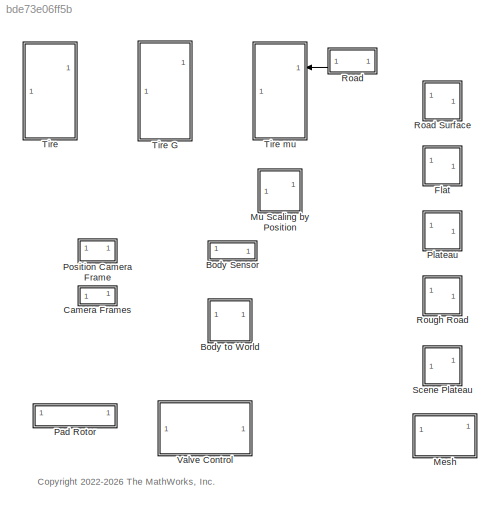
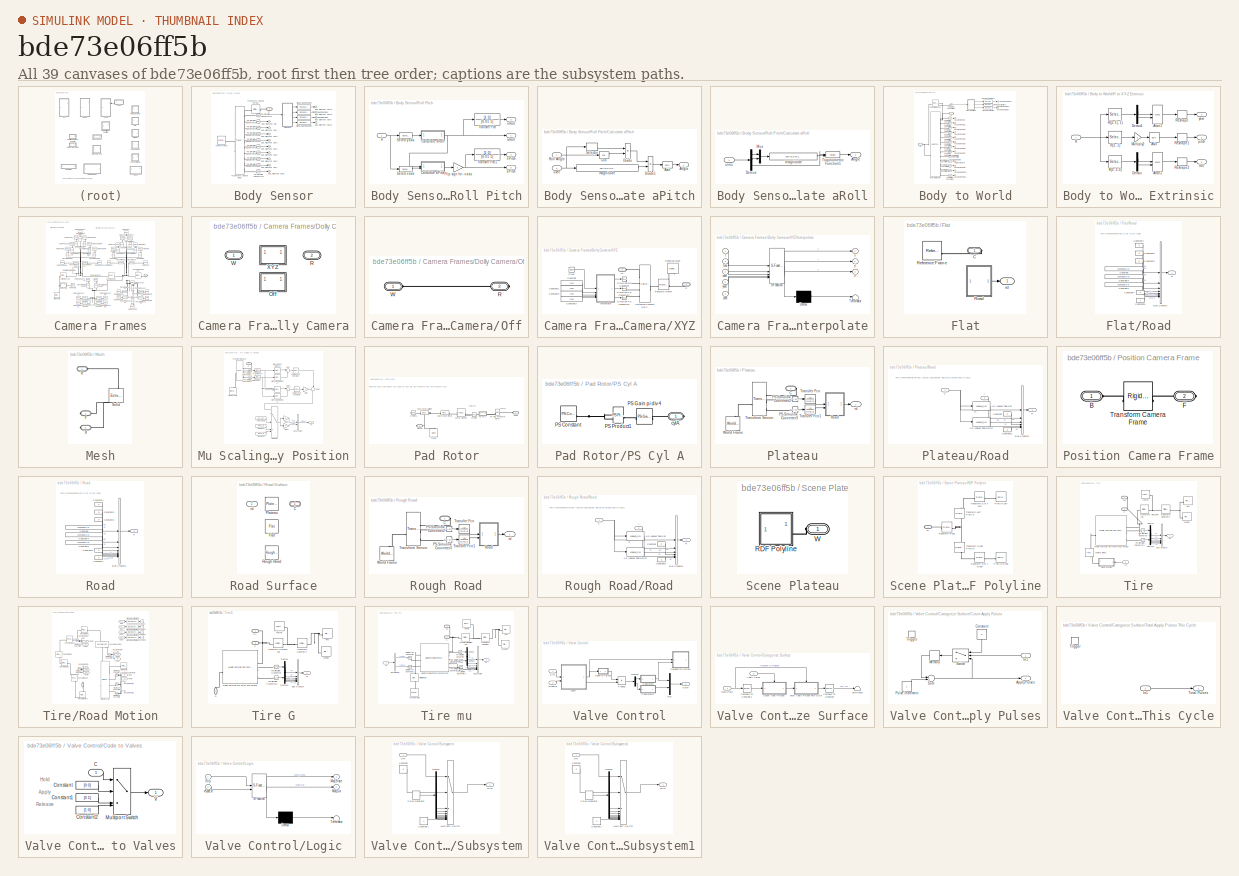
[diagram: thumbnail index - all 39 canvases of the model, root first then tree order]
MODEL slx_bde73e06ff5b
KIND library
CONFIG SolverName = VariableStepAuto
BLOCK [SubSystem] Body Sensor
BLOCK [PMIOPort] Body Sensor/B
  NameLocation = top
  Side = Left
BLOCK [Outport] Body Sensor/Bus Element Out
  VectorParamsAs1DForOutWhenUnconnected = off
BLOCK [Outport] Body Sensor/Bus Element Out1
  VectorParamsAs1DForOutWhenUnconnected = off
BLOCK [Outport] Body Sensor/Bus Element Out10
  VectorParamsAs1DForOutWhenUnconnected = off
BLOCK [Outport] Body Sensor/Bus Element Out12
  VectorParamsAs1DForOutWhenUnconnected = off
BLOCK [Outport] Body Sensor/Bus Element Out13
  VectorParamsAs1DForOutWhenUnconnected = off
BLOCK [Outport] Body Sensor/Bus Element Out2
  VectorParamsAs1DForOutWhenUnconnected = off
BLOCK [Outport] Body Sensor/Bus Element Out3
  VectorParamsAs1DForOutWhenUnconnected = off
BLOCK [Outport] Body Sensor/Bus Element Out4
  VectorParamsAs1DForOutWhenUnconnected = off
BLOCK [Outport] Body Sensor/Bus Element Out5
  VectorParamsAs1DForOutWhenUnconnected = off
BLOCK [Outport] Body Sensor/Bus Element Out6
  VectorParamsAs1DForOutWhenUnconnected = off
BLOCK [Outport] Body Sensor/Bus Element Out7
  VectorParamsAs1DForOutWhenUnconnected = off
BLOCK [Outport] Body Sensor/Bus Element Out8
  VectorParamsAs1DForOutWhenUnconnected = off
BLOCK [Outport] Body Sensor/Bus Element Out9
  VectorParamsAs1DForOutWhenUnconnected = off
BLOCK [Reference] Body Sensor/PS-Simulink Converter1  REF=nesl_utility/PS-Simulink
Converter
  SourceBlock = nesl_utility/PS-Simulink\nConverter
  SourceType = PS-Simulink\nConverter
BLOCK [Reference] Body Sensor/PS-Simulink Converter11  REF=nesl_utility/PS-Simulink
Converter
  SourceBlock = nesl_utility/PS-Simulink\nConverter
  SourceType = PS-Simulink\nConverter
BLOCK [Reference] Body Sensor/PS-Simulink Converter2  REF=nesl_utility/PS-Simulink
Converter
  SourceBlock = nesl_utility/PS-Simulink\nConverter
  SourceType = PS-Simulink\nConverter
BLOCK [Reference] Body Sensor/PS-Simulink Converter3  REF=nesl_utility/PS-Simulink
Converter
  SourceBlock = nesl_utility/PS-Simulink\nConverter
  SourceType = PS-Simulink\nConverter
BLOCK [Reference] Body Sensor/PS-Simulink Converter4  REF=nesl_utility/PS-Simulink
Converter
  SourceBlock = nesl_utility/PS-Simulink\nConverter
  SourceType = PS-Simulink\nConverter
BLOCK [Reference] Body Sensor/PS-Simulink Converter5  REF=nesl_utility/PS-Simulink
Converter
  SourceBlock = nesl_utility/PS-Simulink\nConverter
  SourceType = PS-Simulink\nConverter
BLOCK [Reference] Body Sensor/PS-Simulink Converter6  REF=nesl_utility/PS-Simulink
Converter
  SourceBlock = nesl_utility/PS-Simulink\nConverter
  SourceType = PS-Simulink\nConverter
BLOCK [Reference] Body Sensor/PS-Simulink Converter7  REF=nesl_utility/PS-Simulink
Converter
  SourceBlock = nesl_utility/PS-Simulink\nConverter
  SourceType = PS-Simulink\nConverter
BLOCK [Reference] Body Sensor/PS-Simulink Converter8  REF=nesl_utility/PS-Simulink
Converter
  SourceBlock = nesl_utility/PS-Simulink\nConverter
  SourceType = PS-Simulink\nConverter
BLOCK [Reference] Body Sensor/PS-Simulink Converter9  REF=nesl_utility/PS-Simulink
Converter
  SourceBlock = nesl_utility/PS-Simulink\nConverter
  SourceType = PS-Simulink\nConverter
BLOCK [SubSystem] Body Sensor/Roll Pitch
BLOCK [SubSystem] Body Sensor/Roll Pitch/Calculate aPitch
BLOCK [Outport] Body Sensor/Roll Pitch/Calculate aPitch/Angle
  VectorParamsAs1DForOutWhenUnconnected = off
BLOCK [Trigonometry] Body Sensor/Roll Pitch/Calculate aPitch/Asin
  Operator = asin
BLOCK [Trigonometry] Body Sensor/Roll Pitch/Calculate aPitch/Cos
  Operator = cos
BLOCK [Product] Body Sensor/Roll Pitch/Calculate aPitch/Divide
  Inputs = */
BLOCK [Product] Body Sensor/Roll Pitch/Calculate aPitch/Divide1
  Inputs = */
BLOCK [Inport] Body Sensor/Roll Pitch/Calculate aPitch/Roll Angle
BLOCK [Selector] Body Sensor/Roll Pitch/Calculate aPitch/Selector
  IndexOptions = Index vector (dialog)
  Indices = [3]
  InputPortWidth = 3
  NameLocation = top
  OutputSizes = 1
BLOCK [Fcn] Body Sensor/Roll Pitch/Calculate aPitch/magnitude
  Expr = sqrt(u(1)*u(1)+u(2)*u(2)+u(3)*u(3))
BLOCK [Inport] Body Sensor/Roll Pitch/Calculate aPitch/uvec
  Port = 2
BLOCK [SubSystem] Body Sensor/Roll Pitch/Calculate aRoll
BLOCK [Outport] Body Sensor/Roll Pitch/Calculate aRoll/Angle
  VectorParamsAs1DForOutWhenUnconnected = off
BLOCK [Demux] Body Sensor/Roll Pitch/Calculate aRoll/Demux
  Outputs = 3
BLOCK [Mux] Body Sensor/Roll Pitch/Calculate aRoll/Mux
  DisplayOption = bar
  Inputs = 2
BLOCK [Trigonometry] Body Sensor/Roll Pitch/Calculate aRoll/Trigonometric Function1
  Operator = atan2
BLOCK [Fcn] Body Sensor/Roll Pitch/Calculate aRoll/magnitude
  Expr = sqrt(u(1)*u(1)+u(2)*u(2))
BLOCK [Inport] Body Sensor/Roll Pitch/Calculate aRoll/uvec
BLOCK [Gain] Body Sensor/Roll Pitch/Flip sign for -x axis 
  Gain = -1
BLOCK [Inport] Body Sensor/Roll Pitch/R
BLOCK [Selector] Body Sensor/Roll Pitch/Select x axis
  IndexOptions = Index vector (dialog),Index vector (dialog)
  Indices = [1 2 3],1
  InputPortWidth = 2
  NumberOfDimensions = 2
  OutputSizes = 1,1
BLOCK [Selector] Body Sensor/Roll Pitch/Select y axis
  IndexOptions = Index vector (dialog),Index vector (dialog)
  Indices = [1 2 3],2
  InputPortWidth = 2
  NumberOfDimensions = 2
  OutputSizes = 1,1
BLOCK [TransferFcn] Body Sensor/Roll Pitch/Transfer Fcn
  Denominator = [0.01 1]
  NameLocation = top
  Numerator = [1 0]
BLOCK [TransferFcn] Body Sensor/Roll Pitch/Transfer Fcn1
  Denominator = [0.01 1]
  NameLocation = top
  Numerator = [1 0]
BLOCK [Outport] Body Sensor/Roll Pitch/aPitch
  Port = 2
  VectorParamsAs1DForOutWhenUnconnected = off
BLOCK [Outport] Body Sensor/Roll Pitch/aRoll
  VectorParamsAs1DForOutWhenUnconnected = off
BLOCK [Outport] Body Sensor/Roll Pitch/nPitch
  Port = 4
  VectorParamsAs1DForOutWhenUnconnected = off
BLOCK [Outport] Body Sensor/Roll Pitch/nRoll
  Port = 3
  VectorParamsAs1DForOutWhenUnconnected = off
BLOCK [SignalSpecification] Body Sensor/Signal Specification
  Unit = rad
BLOCK [SignalSpecification] Body Sensor/Signal Specification1
  Unit = rad
BLOCK [SignalSpecification] Body Sensor/Signal Specification3
  Unit = rad/s
BLOCK [SignalSpecification] Body Sensor/Signal Specification4
  Unit = rad/s
BLOCK [Reference] Body Sensor/Transform Sensor Body  REF=sm_lib/Frames and
Transforms/Transform
Sensor
  AttributesFormatString = %<MeasurementFrame>
  SourceBlock = sm_lib/Frames and\nTransforms/Transform\nSensor
  SourceType = Transform\nSensor
BLOCK [Reference] Body Sensor/Transform Sensor Offset  REF=sm_lib/Frames and
Transforms/Rigid
Transform
  NameLocation = top
  SourceBlock = sm_lib/Frames and\nTransforms/Rigid\nTransform
  SourceType = Rigid\nTransform
BLOCK [Reference] Body Sensor/World Frame  REF=sm_lib/Frames and
Transforms/World Frame
  SourceBlock = sm_lib/Frames and\nTransforms/World Frame
  SourceType = World Frame
BLOCK [SubSystem] Body to World
BLOCK [PMIOPort] Body to World/B
  Port = 2
  Side = Left
BLOCK [Reference] Body to World/Body World Joint  REF=sm_lib/Joints/6-DOF Joint
  SourceBlock = sm_lib/Joints/6-DOF Joint
  SourceType = 6-DOF Joint
BLOCK [Outport] Body to World/Bus Element Out
  VectorParamsAs1DForOutWhenUnconnected = off
BLOCK [Outport] Body to World/Bus Element Out1
  VectorParamsAs1DForOutWhenUnconnected = off
BLOCK [Outport] Body to World/Bus Element Out10
  VectorParamsAs1DForOutWhenUnconnected = off
BLOCK [Outport] Body to World/Bus Element Out11
  VectorParamsAs1DForOutWhenUnconnected = off
BLOCK [Outport] Body to World/Bus Element Out12
  VectorParamsAs1DForOutWhenUnconnected = off
BLOCK [Outport] Body to World/Bus Element Out13
  VectorParamsAs1DForOutWhenUnconnected = off
BLOCK [Outport] Body to World/Bus Element Out14
  VectorParamsAs1DForOutWhenUnconnected = off
BLOCK [Outport] Body to World/Bus Element Out2
  VectorParamsAs1DForOutWhenUnconnected = off
BLOCK [Outport] Body to World/Bus Element Out3
  VectorParamsAs1DForOutWhenUnconnected = off
BLOCK [Outport] Body to World/Bus Element Out4
  VectorParamsAs1DForOutWhenUnconnected = off
BLOCK [Outport] Body to World/Bus Element Out5
  VectorParamsAs1DForOutWhenUnconnected = off
BLOCK [Outport] Body to World/Bus Element Out6
  VectorParamsAs1DForOutWhenUnconnected = off
BLOCK [Outport] Body to World/Bus Element Out7
  VectorParamsAs1DForOutWhenUnconnected = off
BLOCK [Outport] Body to World/Bus Element Out8
  VectorParamsAs1DForOutWhenUnconnected = off
BLOCK [Outport] Body to World/Bus Element Out9
  VectorParamsAs1DForOutWhenUnconnected = off
BLOCK [PMIOPort] Body to World/F
  Side = Right
BLOCK [Outport] Body to World/Out Bus Element
  VectorParamsAs1DForOutWhenUnconnected = off
BLOCK [Reference] Body to World/PS-Simulink Converter  REF=nesl_utility/PS-Simulink
Converter
  SourceBlock = nesl_utility/PS-Simulink\nConverter
  SourceType = PS-Simulink\nConverter
BLOCK [Reference] Body to World/PS-Simulink Converter1  REF=nesl_utility/PS-Simulink
Converter
  SourceBlock = nesl_utility/PS-Simulink\nConverter
  SourceType = PS-Simulink\nConverter
BLOCK [Reference] Body to World/PS-Simulink Converter10  REF=nesl_utility/PS-Simulink
Converter
  SourceBlock = nesl_utility/PS-Simulink\nConverter
  SourceType = PS-Simulink\nConverter
BLOCK [Reference] Body to World/PS-Simulink Converter11  REF=nesl_utility/PS-Simulink
Converter
  SourceBlock = nesl_utility/PS-Simulink\nConverter
  SourceType = PS-Simulink\nConverter
BLOCK [Reference] Body to World/PS-Simulink Converter12  REF=nesl_utility/PS-Simulink
Converter
  SourceBlock = nesl_utility/PS-Simulink\nConverter
  SourceType = PS-Simulink\nConverter
BLOCK [Reference] Body to World/PS-Simulink Converter13  REF=nesl_utility/PS-Simulink
Converter
  SourceBlock = nesl_utility/PS-Simulink\nConverter
  SourceType = PS-Simulink\nConverter
BLOCK [Reference] Body to World/PS-Simulink Converter2  REF=nesl_utility/PS-Simulink
Converter
  SourceBlock = nesl_utility/PS-Simulink\nConverter
  SourceType = PS-Simulink\nConverter
BLOCK [Reference] Body to World/PS-Simulink Converter3  REF=nesl_utility/PS-Simulink
Converter
  SourceBlock = nesl_utility/PS-Simulink\nConverter
  SourceType = PS-Simulink\nConverter
BLOCK [Reference] Body to World/PS-Simulink Converter4  REF=nesl_utility/PS-Simulink
Converter
  SourceBlock = nesl_utility/PS-Simulink\nConverter
  SourceType = PS-Simulink\nConverter
BLOCK [Reference] Body to World/PS-Simulink Converter5  REF=nesl_utility/PS-Simulink
Converter
  SourceBlock = nesl_utility/PS-Simulink\nConverter
  SourceType = PS-Simulink\nConverter
BLOCK [Reference] Body to World/PS-Simulink Converter6  REF=nesl_utility/PS-Simulink
Converter
  SourceBlock = nesl_utility/PS-Simulink\nConverter
  SourceType = PS-Simulink\nConverter
BLOCK [Reference] Body to World/PS-Simulink Converter7  REF=nesl_utility/PS-Simulink
Converter
  SourceBlock = nesl_utility/PS-Simulink\nConverter
  SourceType = PS-Simulink\nConverter
BLOCK [Reference] Body to World/PS-Simulink Converter8  REF=nesl_utility/PS-Simulink
Converter
  SourceBlock = nesl_utility/PS-Simulink\nConverter
  SourceType = PS-Simulink\nConverter
BLOCK [Reference] Body to World/PS-Simulink Converter9  REF=nesl_utility/PS-Simulink
Converter
  SourceBlock = nesl_utility/PS-Simulink\nConverter
  SourceType = PS-Simulink\nConverter
BLOCK [SubSystem] Body to World/R to X-Y-Z Extrinsic
BLOCK [Trigonometry] Body to World/R to X-Y-Z Extrinsic/Asin
  Operator = asin
BLOCK [Trigonometry] Body to World/R to X-Y-Z Extrinsic/Atan1
  Operator = atan2
BLOCK [Trigonometry] Body to World/R to X-Y-Z Extrinsic/Atan2
  Operator = atan2
BLOCK [Demux] Body to World/R to X-Y-Z Extrinsic/Demux
  Outputs = 2
BLOCK [Demux] Body to World/R to X-Y-Z Extrinsic/Demux1
  Outputs = 2
BLOCK [Gain] Body to World/R to X-Y-Z Extrinsic/Multiply2
  Gain = -1
BLOCK [Inport] Body to World/R to X-Y-Z Extrinsic/R
BLOCK [Selector] Body to World/R to X-Y-Z Extrinsic/R(3, 1)
  IndexOptions = Index vector (dialog),Index vector (dialog)
  Indices = 3,1
  InputPortWidth = 3
  NumberOfDimensions = 2
  OutputSizes = 1,1
BLOCK [Selector] Body to World/R to X-Y-Z Extrinsic/R(3, 2:3)
  IndexOptions = Index vector (dialog),Index vector (dialog)
  Indices = 3,[2 3]
  InputPortWidth = 3
  NumberOfDimensions = 2
  OutputSizes = 1,1
BLOCK [Selector] Body to World/R to X-Y-Z Extrinsic/R([2 1], 1)
  IndexOptions = Index vector (dialog),Index vector (dialog)
  Indices = [2 1],1
  InputPortWidth = 3
  NumberOfDimensions = 2
  OutputSizes = 1,1
BLOCK [Reshape] Body to World/R to X-Y-Z Extrinsic/Reshape
BLOCK [Reshape] Body to World/R to X-Y-Z Extrinsic/Reshape1
BLOCK [Reshape] Body to World/R to X-Y-Z Extrinsic/Reshape2
  OutputDimensionality = Customize
  OutputDimensions = 1
BLOCK [Outport] Body to World/R to X-Y-Z Extrinsic/pitch
  Port = 2
  VectorParamsAs1DForOutWhenUnconnected = off
BLOCK [Outport] Body to World/R to X-Y-Z Extrinsic/roll
  Port = 3
  VectorParamsAs1DForOutWhenUnconnected = off
BLOCK [Outport] Body to World/R to X-Y-Z Extrinsic/yaw
  VectorParamsAs1DForOutWhenUnconnected = off
BLOCK [SignalSpecification] Body to World/Signal Specification
  Unit = rad
BLOCK [SignalSpecification] Body to World/Signal Specification1
  Unit = rad
BLOCK [SignalSpecification] Body to World/Signal Specification2
  Unit = rad
BLOCK [Reference] Body to World/Transform Sensor  REF=sm_lib/Frames and
Transforms/Transform
Sensor
  SourceBlock = sm_lib/Frames and\nTransforms/Transform\nSensor
  SourceType = Transform\nSensor
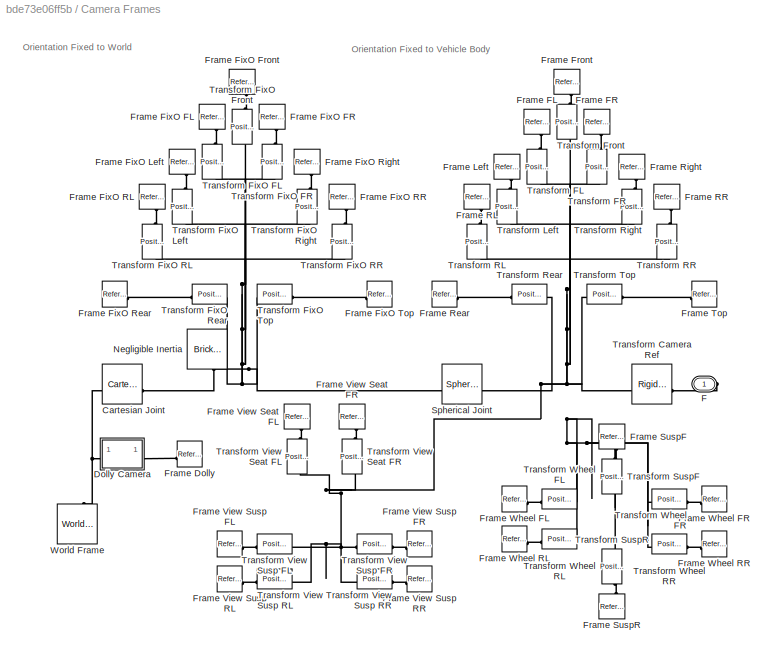
BLOCK [SubSystem] Camera Frames
BLOCK [Reference] Camera Frames/Cartesian Joint  REF=sm_lib/Joints/Cartesian
Joint
  SourceBlock = sm_lib/Joints/Cartesian\nJoint
  SourceType = Cartesian\nJoint
BLOCK [SubSystem] Camera Frames/Dolly Camera
  AttributesFormatString = %<ActiveVariant>
  LabelModeActiveChoice = Off
  Variant = on
  VariantControl = Variant1
  VariantControlMode = label
BLOCK [PMIOPort] Camera Frames/Dolly Camera/ R
  Port = 2
  Side = Right
BLOCK [PMIOPort] Camera Frames/Dolly Camera/ W
  Side = Left
BLOCK [SubSystem] Camera Frames/Dolly Camera/Off
  VariantControl = Off
BLOCK [PMIOPort] Camera Frames/Dolly Camera/Off/R
  NameLocation = top
  Port = 2
  Side = Right
BLOCK [PMIOPort] Camera Frames/Dolly Camera/Off/W
  Side = Left
BLOCK [SubSystem] Camera Frames/Dolly Camera/XYZ
  VariantControl = XYZ
BLOCK [Reference] Camera Frames/Dolly Camera/XYZ/Cartesian Camera Dolly  REF=sm_lib/Joints/Cartesian
Joint
  SourceBlock = sm_lib/Joints/Cartesian\nJoint
  SourceType = Cartesian\nJoint
BLOCK [Clock] Camera Frames/Dolly Camera/XYZ/Clock
BLOCK [Constant] Camera Frames/Dolly Camera/XYZ/Constant
  Value = tvec
BLOCK [Constant] Camera Frames/Dolly Camera/XYZ/Constant1
  Value = xvec
BLOCK [Constant] Camera Frames/Dolly Camera/XYZ/Constant2
  Value = yvec
BLOCK [Constant] Camera Frames/Dolly Camera/XYZ/Constant3
  Value = zvec
BLOCK [SubSystem] Camera Frames/Dolly Camera/XYZ/Interpolate
  ErrorFcn = Stateflow.Translate.translate
  PermitHierarchicalResolution = ExplicitOnly
  SFBlockType = MATLAB Function
  TreatAsAtomicUnit = on
BLOCK [Demux] Camera Frames/Dolly Camera/XYZ/Interpolate/ Demux 
  Outputs = 1
BLOCK [S-Function] Camera Frames/Dolly Camera/XYZ/Interpolate/ SFunction 
  EnableBusSupport = off
  FunctionName = sf_sfun
  PortCounts = [5 4]
  SFcnIsStateOwnerBlock = off
  SFunctionDeploymentMode = off
  Tag = Stateflow S-Function 2
BLOCK [Terminator] Camera Frames/Dolly Camera/XYZ/Interpolate/ Terminator 
BLOCK [Inport] Camera Frames/Dolly Camera/XYZ/Interpolate/t
BLOCK [Inport] Camera Frames/Dolly Camera/XYZ/Interpolate/tvec
  Port = 2
BLOCK [Outport] Camera Frames/Dolly Camera/XYZ/Interpolate/x
BLOCK [Inport] Camera Frames/Dolly Camera/XYZ/Interpolate/xvec
  Port = 3
BLOCK [Outport] Camera Frames/Dolly Camera/XYZ/Interpolate/y
  Port = 2
BLOCK [Inport] Camera Frames/Dolly Camera/XYZ/Interpolate/yvec
  Port = 4
BLOCK [Outport] Camera Frames/Dolly Camera/XYZ/Interpolate/z
  Port = 3
BLOCK [Inport] Camera Frames/Dolly Camera/XYZ/Interpolate/zvec
  Port = 5
BLOCK [PMIOPort] Camera Frames/Dolly Camera/XYZ/R
  NameLocation = top
  Port = 2
  Side = Right
BLOCK [Reference] Camera Frames/Dolly Camera/XYZ/Required Mass  REF=sm_lib/Body Elements/Spherical Solid
  NameLocation = left
  SourceBlock = sm_lib/Body Elements/Spherical Solid
  SourceType = Spherical Solid
BLOCK [Reference] Camera Frames/Dolly Camera/XYZ/Simulink-PS Converter  REF=nesl_utility/Simulink-PS
Converter
  SourceBlock = nesl_utility/Simulink-PS\nConverter
  SourceType = Simulink-PS\nConverter
BLOCK [Reference] Camera Frames/Dolly Camera/XYZ/Simulink-PS Converter1  REF=nesl_utility/Simulink-PS
Converter
  SourceBlock = nesl_utility/Simulink-PS\nConverter
  SourceType = Simulink-PS\nConverter
BLOCK [Reference] Camera Frames/Dolly Camera/XYZ/Simulink-PS Converter2  REF=nesl_utility/Simulink-PS
Converter
  SourceBlock = nesl_utility/Simulink-PS\nConverter
  SourceType = Simulink-PS\nConverter
BLOCK [Reference] Camera Frames/Dolly Camera/XYZ/Transform Frame  REF=sm_lib/Frames and
Transforms/Rigid
Transform
  SourceBlock = sm_lib/Frames and\nTransforms/Rigid\nTransform
  SourceType = Rigid\nTransform
BLOCK [PMIOPort] Camera Frames/Dolly Camera/XYZ/W
  Side = Left
BLOCK [PMIOPort] Camera Frames/F
  Side = Right
BLOCK [Reference] Camera Frames/Frame Dolly  REF=sm_lib/Frames and
Transforms/Reference
Frame
  SourceBlock = sm_lib/Frames and\nTransforms/Reference\nFrame
  SourceType = Reference\nFrame
BLOCK [Reference] Camera Frames/Frame FL  REF=sm_lib/Frames and
Transforms/Reference
Frame
  NameLocation = left
  SourceBlock = sm_lib/Frames and\nTransforms/Reference\nFrame
  SourceType = Reference\nFrame
BLOCK [Reference] Camera Frames/Frame FR  REF=sm_lib/Frames and
Transforms/Reference
Frame
  NameLocation = right
  SourceBlock = sm_lib/Frames and\nTransforms/Reference\nFrame
  SourceType = Reference\nFrame
BLOCK [Reference] Camera Frames/Frame FixO FL  REF=sm_lib/Frames and
Transforms/Reference
Frame
  NameLocation = left
  SourceBlock = sm_lib/Frames and\nTransforms/Reference\nFrame
  SourceType = Reference\nFrame
BLOCK [Reference] Camera Frames/Frame FixO FR  REF=sm_lib/Frames and
Transforms/Reference
Frame
  NameLocation = right
  SourceBlock = sm_lib/Frames and\nTransforms/Reference\nFrame
  SourceType = Reference\nFrame
BLOCK [Reference] Camera Frames/Frame FixO Front  REF=sm_lib/Frames and
Transforms/Reference
Frame
  NameLocation = right
  SourceBlock = sm_lib/Frames and\nTransforms/Reference\nFrame
  SourceType = Reference\nFrame
BLOCK [Reference] Camera Frames/Frame FixO Left  REF=sm_lib/Frames and
Transforms/Reference
Frame
  NameLocation = left
  SourceBlock = sm_lib/Frames and\nTransforms/Reference\nFrame
  SourceType = Reference\nFrame
BLOCK [Reference] Camera Frames/Frame FixO RL  REF=sm_lib/Frames and
Transforms/Reference
Frame
  NameLocation = left
  SourceBlock = sm_lib/Frames and\nTransforms/Reference\nFrame
  SourceType = Reference\nFrame
BLOCK [Reference] Camera Frames/Frame FixO RR  REF=sm_lib/Frames and
Transforms/Reference
Frame
  NameLocation = right
  SourceBlock = sm_lib/Frames and\nTransforms/Reference\nFrame
  SourceType = Reference\nFrame
BLOCK [Reference] Camera Frames/Frame FixO Rear  REF=sm_lib/Frames and
Transforms/Reference
Frame
  NameLocation = top
  SourceBlock = sm_lib/Frames and\nTransforms/Reference\nFrame
  SourceType = Reference\nFrame
BLOCK [Reference] Camera Frames/Frame FixO Right  REF=sm_lib/Frames and
Transforms/Reference
Frame
  NameLocation = right
  SourceBlock = sm_lib/Frames and\nTransforms/Reference\nFrame
  SourceType = Reference\nFrame
BLOCK [Reference] Camera Frames/Frame FixO Top  REF=sm_lib/Frames and
Transforms/Reference
Frame
  NameLocation = top
  SourceBlock = sm_lib/Frames and\nTransforms/Reference\nFrame
  SourceType = Reference\nFrame
BLOCK [Reference] Camera Frames/Frame Front  REF=sm_lib/Frames and
Transforms/Reference
Frame
  NameLocation = right
  SourceBlock = sm_lib/Frames and\nTransforms/Reference\nFrame
  SourceType = Reference\nFrame
BLOCK [Reference] Camera Frames/Frame Left  REF=sm_lib/Frames and
Transforms/Reference
Frame
  NameLocation = left
  SourceBlock = sm_lib/Frames and\nTransforms/Reference\nFrame
  SourceType = Reference\nFrame
BLOCK [Reference] Camera Frames/Frame RL  REF=sm_lib/Frames and
Transforms/Reference
Frame
  NameLocation = left
  SourceBlock = sm_lib/Frames and\nTransforms/Reference\nFrame
  SourceType = Reference\nFrame
BLOCK [Reference] Camera Frames/Frame RR  REF=sm_lib/Frames and
Transforms/Reference
Frame
  NameLocation = right
  SourceBlock = sm_lib/Frames and\nTransforms/Reference\nFrame
  SourceType = Reference\nFrame
BLOCK [Reference] Camera Frames/Frame Rear  REF=sm_lib/Frames and
Transforms/Reference
Frame
  NameLocation = top
  SourceBlock = sm_lib/Frames and\nTransforms/Reference\nFrame
  SourceType = Reference\nFrame
BLOCK [Reference] Camera Frames/Frame Right  REF=sm_lib/Frames and
Transforms/Reference
Frame
  NameLocation = right
  SourceBlock = sm_lib/Frames and\nTransforms/Reference\nFrame
  SourceType = Reference\nFrame
BLOCK [Reference] Camera Frames/Frame SuspF  REF=sm_lib/Frames and
Transforms/Reference
Frame
  NameLocation = right
  SourceBlock = sm_lib/Frames and\nTransforms/Reference\nFrame
  SourceType = Reference\nFrame
BLOCK [Reference] Camera Frames/Frame SuspR  REF=sm_lib/Frames and
Transforms/Reference
Frame
  NameLocation = right
  SourceBlock = sm_lib/Frames and\nTransforms/Reference\nFrame
  SourceType = Reference\nFrame
BLOCK [Reference] Camera Frames/Frame Top  REF=sm_lib/Frames and
Transforms/Reference
Frame
  NameLocation = top
  SourceBlock = sm_lib/Frames and\nTransforms/Reference\nFrame
  SourceType = Reference\nFrame
BLOCK [Reference] Camera Frames/Frame View Seat FL  REF=sm_lib/Frames and
Transforms/Reference
Frame
  NameLocation = left
  SourceBlock = sm_lib/Frames and\nTransforms/Reference\nFrame
  SourceType = Reference\nFrame
BLOCK [Reference] Camera Frames/Frame View Seat FR  REF=sm_lib/Frames and
Transforms/Reference
Frame
  NameLocation = right
  SourceBlock = sm_lib/Frames and\nTransforms/Reference\nFrame
  SourceType = Reference\nFrame
BLOCK [Reference] Camera Frames/Frame View Susp FL  REF=sm_lib/Frames and
Transforms/Reference
Frame
  NameLocation = top
  SourceBlock = sm_lib/Frames and\nTransforms/Reference\nFrame
  SourceType = Reference\nFrame
BLOCK [Reference] Camera Frames/Frame View Susp FR  REF=sm_lib/Frames and
Transforms/Reference
Frame
  NameLocation = top
  SourceBlock = sm_lib/Frames and\nTransforms/Reference\nFrame
  SourceType = Reference\nFrame
BLOCK [Reference] Camera Frames/Frame View Susp RL  REF=sm_lib/Frames and
Transforms/Reference
Frame
  SourceBlock = sm_lib/Frames and\nTransforms/Reference\nFrame
  SourceType = Reference\nFrame
BLOCK [Reference] Camera Frames/Frame View Susp RR  REF=sm_lib/Frames and
Transforms/Reference
Frame
  SourceBlock = sm_lib/Frames and\nTransforms/Reference\nFrame
  SourceType = Reference\nFrame
BLOCK [Reference] Camera Frames/Frame Wheel FL  REF=sm_lib/Frames and
Transforms/Reference
Frame
  NameLocation = top
  SourceBlock = sm_lib/Frames and\nTransforms/Reference\nFrame
  SourceType = Reference\nFrame
BLOCK [Reference] Camera Frames/Frame Wheel FR  REF=sm_lib/Frames and
Transforms/Reference
Frame
  NameLocation = top
  SourceBlock = sm_lib/Frames and\nTransforms/Reference\nFrame
  SourceType = Reference\nFrame
BLOCK [Reference] Camera Frames/Frame Wheel RL  REF=sm_lib/Frames and
Transforms/Reference
Frame
  SourceBlock = sm_lib/Frames and\nTransforms/Reference\nFrame
  SourceType = Reference\nFrame
BLOCK [Reference] Camera Frames/Frame Wheel RR  REF=sm_lib/Frames and
Transforms/Reference
Frame
  SourceBlock = sm_lib/Frames and\nTransforms/Reference\nFrame
  SourceType = Reference\nFrame
BLOCK [Reference] Camera Frames/Negligible Inertia  REF=sm_lib/Body Elements/Brick Solid
  NameLocation = left
  SourceBlock = sm_lib/Body Elements/Brick Solid
  SourceType = Brick Solid
BLOCK [Reference] Camera Frames/Spherical Joint  REF=sm_lib/Joints/Spherical
Joint
  NameLocation = top
  SourceBlock = sm_lib/Joints/Spherical\nJoint
  SourceType = Spherical\nJoint
BLOCK [Reference] Camera Frames/Transform Camera Ref  REF=sm_lib/Frames and
Transforms/Rigid
Transform
  NameLocation = top
  SourceBlock = sm_lib/Frames and\nTransforms/Rigid\nTransform
  SourceType = Rigid\nTransform
BLOCK [Reference] Camera Frames/Transform FL  REF=$bdroot/Position Camera Frame
  NameLocation = left
  SourceBlock = $bdroot/Position Camera Frame
  SourceType = Define Camera Frame
BLOCK [Reference] Camera Frames/Transform FR  REF=$bdroot/Position Camera Frame
  NameLocation = left
  SourceBlock = $bdroot/Position Camera Frame
  SourceType = Define Camera Frame
BLOCK [Reference] Camera Frames/Transform FixO FL  REF=$bdroot/Position Camera Frame
  NameLocation = left
  SourceBlock = $bdroot/Position Camera Frame
  SourceType = Define Camera Frame
BLOCK [Reference] Camera Frames/Transform FixO FR  REF=$bdroot/Position Camera Frame
  NameLocation = left
  SourceBlock = $bdroot/Position Camera Frame
  SourceType = Define Camera Frame
BLOCK [Reference] Camera Frames/Transform FixO Front  REF=$bdroot/Position Camera Frame
  NameLocation = left
  SourceBlock = $bdroot/Position Camera Frame
  SourceType = Define Camera Frame
BLOCK [Reference] Camera Frames/Transform FixO Left  REF=$bdroot/Position Camera Frame
  NameLocation = left
  SourceBlock = $bdroot/Position Camera Frame
  SourceType = Define Camera Frame
BLOCK [Reference] Camera Frames/Transform FixO RL  REF=$bdroot/Position Camera Frame
  NameLocation = left
  SourceBlock = $bdroot/Position Camera Frame
  SourceType = Define Camera Frame
BLOCK [Reference] Camera Frames/Transform FixO RR  REF=$bdroot/Position Camera Frame
  NameLocation = right
  SourceBlock = $bdroot/Position Camera Frame
  SourceType = Define Camera Frame
BLOCK [Reference] Camera Frames/Transform FixO Rear  REF=$bdroot/Position Camera Frame
  SourceBlock = $bdroot/Position Camera Frame
  SourceType = Define Camera Frame
BLOCK [Reference] Camera Frames/Transform FixO Right  REF=$bdroot/Position Camera Frame
  NameLocation = right
  SourceBlock = $bdroot/Position Camera Frame
  SourceType = Define Camera Frame
BLOCK [Reference] Camera Frames/Transform FixO Top  REF=$bdroot/Position Camera Frame
  NameLocation = top
  SourceBlock = $bdroot/Position Camera Frame
  SourceType = Define Camera Frame
BLOCK [Reference] Camera Frames/Transform Front  REF=$bdroot/Position Camera Frame
  NameLocation = left
  SourceBlock = $bdroot/Position Camera Frame
  SourceType = Define Camera Frame
BLOCK [Reference] Camera Frames/Transform Left  REF=$bdroot/Position Camera Frame
  NameLocation = left
  SourceBlock = $bdroot/Position Camera Frame
  SourceType = Define Camera Frame
BLOCK [Reference] Camera Frames/Transform RL  REF=$bdroot/Position Camera Frame
  NameLocation = left
  SourceBlock = $bdroot/Position Camera Frame
  SourceType = Define Camera Frame
BLOCK [Reference] Camera Frames/Transform RR  REF=$bdroot/Position Camera Frame
  NameLocation = left
  SourceBlock = $bdroot/Position Camera Frame
  SourceType = Define Camera Frame
BLOCK [Reference] Camera Frames/Transform Rear  REF=$bdroot/Position Camera Frame
  SourceBlock = $bdroot/Position Camera Frame
  SourceType = Define Camera Frame
BLOCK [Reference] Camera Frames/Transform Right  REF=$bdroot/Position Camera Frame
  NameLocation = left
  SourceBlock = $bdroot/Position Camera Frame
  SourceType = Define Camera Frame
BLOCK [Reference] Camera Frames/Transform SuspF  REF=$bdroot/Position Camera Frame
  NameLocation = left
  SourceBlock = $bdroot/Position Camera Frame
  SourceType = Define Camera Frame
BLOCK [Reference] Camera Frames/Transform SuspR  REF=$bdroot/Position Camera Frame
  NameLocation = left
  SourceBlock = $bdroot/Position Camera Frame
  SourceType = Define Camera Frame
BLOCK [Reference] Camera Frames/Transform Top  REF=$bdroot/Position Camera Frame
  SourceBlock = $bdroot/Position Camera Frame
  SourceType = Define Camera Frame
BLOCK [Reference] Camera Frames/Transform View Seat FL  REF=$bdroot/Position Camera Frame
  NameLocation = left
  SourceBlock = $bdroot/Position Camera Frame
  SourceType = Define Camera Frame
BLOCK [Reference] Camera Frames/Transform View Seat FR  REF=$bdroot/Position Camera Frame
  NameLocation = right
  SourceBlock = $bdroot/Position Camera Frame
  SourceType = Define Camera Frame
BLOCK [Reference] Camera Frames/Transform View Susp FL  REF=$bdroot/Position Camera Frame
  SourceBlock = $bdroot/Position Camera Frame
  SourceType = Define Camera Frame
BLOCK [Reference] Camera Frames/Transform View Susp FR  REF=$bdroot/Position Camera Frame
  NameLocation = top
  SourceBlock = $bdroot/Position Camera Frame
  SourceType = Define Camera Frame
BLOCK [Reference] Camera Frames/Transform View Susp RL  REF=$bdroot/Position Camera Frame
  SourceBlock = $bdroot/Position Camera Frame
  SourceType = Define Camera Frame
BLOCK [Reference] Camera Frames/Transform View Susp RR  REF=$bdroot/Position Camera Frame
  SourceBlock = $bdroot/Position Camera Frame
  SourceType = Define Camera Frame
BLOCK [Reference] Camera Frames/Transform Wheel FL  REF=$bdroot/Position Camera Frame
  SourceBlock = $bdroot/Position Camera Frame
  SourceType = Define Camera Frame
BLOCK [Reference] Camera Frames/Transform Wheel FR  REF=$bdroot/Position Camera Frame
  NameLocation = top
  SourceBlock = $bdroot/Position Camera Frame
  SourceType = Define Camera Frame
BLOCK [Reference] Camera Frames/Transform Wheel RL  REF=$bdroot/Position Camera Frame
  SourceBlock = $bdroot/Position Camera Frame
  SourceType = Define Camera Frame
BLOCK [Reference] Camera Frames/Transform Wheel RR  REF=$bdroot/Position Camera Frame
  SourceBlock = $bdroot/Position Camera Frame
  SourceType = Define Camera Frame
BLOCK [Reference] Camera Frames/World Frame  REF=sm_lib/Frames and
Transforms/World Frame
  NameLocation = right
  SourceBlock = sm_lib/Frames and\nTransforms/World Frame
  SourceType = World Frame
BLOCK [SubSystem] Flat
BLOCK [PMIOPort] Flat/C
  Side = Right
BLOCK [Reference] Flat/Reference Frame  REF=sm_lib/Frames and
Transforms/Reference
Frame
  SourceBlock = sm_lib/Frames and\nTransforms/Reference\nFrame
  SourceType = Reference\nFrame
BLOCK [SubSystem] Flat/Road
BLOCK [BusCreator] Flat/Road/Bus Creator1
  DisplayOption = bar
  InheritFromInputs = on
  Inputs = 8
BLOCK [Constant] Flat/Road/Constant
  Value = SceneData.Reference.roll
BLOCK [Constant] Flat/Road/Constant1
  Value = 0
BLOCK [Constant] Flat/Road/Constant2
  Value = SceneData.Reference.yaw
BLOCK [Constant] Flat/Road/Constant3
  Value = 0
BLOCK [Constant] Flat/Road/Constant4
  Value = SceneData.Reference.pitch
BLOCK [Constant] Flat/Road/Constant5
  Value = 0
BLOCK [Constant] Flat/Road/Constant6
BLOCK [Constant] Flat/Road/Constant7
BLOCK [Outport] Flat/Road/R
BLOCK [Outport] Flat/rd
BLOCK [SubSystem] Mesh
BLOCK [PMIOPort] Mesh/B
  Port = 3
  Side = Right
BLOCK [PMIOPort] Mesh/F
  Side = Right
BLOCK [PMIOPort] Mesh/R
  Port = 2
  Side = Left
BLOCK [Reference] Mesh/Solid  REF=sm_lib/Body Elements/Extruded Solid
  NameLocation = right
  SourceBlock = sm_lib/Body Elements/Extruded Solid
  SourceType = Extruded Solid
BLOCK [SubSystem] Mu Scaling by Position
BLOCK [BusCreator] Mu Scaling by Position/Bus Creator
  DisplayOption = bar
  InheritFromInputs = on
  Inputs = 2
BLOCK [PMIOPort] Mu Scaling by Position/C
  Side = Right
BLOCK [Reference] Mu Scaling by Position/Compare To Constant  REF=simulink/Logic and Bit
Operations/Compare
To Constant
  SourceBlock = simulink/Logic and Bit\nOperations/Compare\nTo Constant
  SourceType = Compare To Constant
BLOCK [Reference] Mu Scaling by Position/Compare To Constant1  REF=simulink/Logic and Bit
Operations/Compare
To Constant
  SourceBlock = simulink/Logic and Bit\nOperations/Compare\nTo Constant
  SourceType = Compare To Constant
BLOCK [Gain] Mu Scaling by Position/Gain
  Gain = 2
BLOCK [Gain] Mu Scaling by Position/Gain1
BLOCK [Gain] Mu Scaling by Position/Gain2
BLOCK [Reference] Mu Scaling by Position/Interval Test Patch 1 y  REF=simulink/Logic and Bit
Operations/Interval Test
  SourceBlock = simulink/Logic and Bit\nOperations/Interval Test
  SourceType = Interval Test
BLOCK [Reference] Mu Scaling by Position/Interval Test Patch 2 x  REF=simulink/Logic and Bit
Operations/Interval Test
  NameLocation = top
  SourceBlock = simulink/Logic and Bit\nOperations/Interval Test
  SourceType = Interval Test
BLOCK [Reference] Mu Scaling by Position/Interval Test Patch 2 y  REF=simulink/Logic and Bit
Operations/Interval Test
  SourceBlock = simulink/Logic and Bit\nOperations/Interval Test
  SourceType = Interval Test
BLOCK [Reference] Mu Scaling by Position/Interval Test Patch1 x  REF=simulink/Logic and Bit
Operations/Interval Test
  NameLocation = top
  SourceBlock = simulink/Logic and Bit\nOperations/Interval Test
  SourceType = Interval Test
BLOCK [Reference] Mu Scaling by Position/PS-Simulink Converter2  REF=nesl_utility/PS-Simulink
Converter
  SourceBlock = nesl_utility/PS-Simulink\nConverter
  SourceType = PS-Simulink\nConverter
BLOCK [Reference] Mu Scaling by Position/PS-Simulink Converter3  REF=nesl_utility/PS-Simulink
Converter
  SourceBlock = nesl_utility/PS-Simulink\nConverter
  SourceType = PS-Simulink\nConverter
BLOCK [MultiPortSwitch] Mu Scaling by Position/Select mu
  DataPortOrder = Zero-based contiguous
  InputSameDT = off
  SaturateOnIntegerOverflow = off
  zeroidx = on
BLOCK [Sum] Mu Scaling by Position/Sum
  Inputs = |++
BLOCK [Sum] Mu Scaling by Position/Sum1
  Inputs = |++
BLOCK [Sum] Mu Scaling by Position/Sum2
  Inputs = ++|
  NameLocation = left
BLOCK [TransferFcn] Mu Scaling by Position/Transfer Fcn
  Denominator = [0.01 1]
BLOCK [TransferFcn] Mu Scaling by Position/Transfer Fcn1
  Denominator = [0.01 1]
BLOCK [Reference] Mu Scaling by Position/Transform Sensor  REF=sm_lib/Frames and
Transforms/Transform
Sensor
  SourceBlock = sm_lib/Frames and\nTransforms/Transform\nSensor
  SourceType = Transform\nSensor
BLOCK [Reference] Mu Scaling by Position/World Frame  REF=sm_lib/Frames and
Transforms/World Frame
  NameLocation = right
  SourceBlock = sm_lib/Frames and\nTransforms/World Frame
  SourceType = World Frame
BLOCK [Constant] Mu Scaling by Position/mu Patch 1
  Value = muP1_in
BLOCK [Constant] Mu Scaling by Position/mu Patch 2
  Value = muP2_in
BLOCK [Constant] Mu Scaling by Position/mu surface
  Value = mu_out
BLOCK [Outport] Mu Scaling by Position/rd
  VectorParamsAs1DForOutWhenUnconnected = off
BLOCK [SubSystem] Pad Rotor
BLOCK [Reference] Pad Rotor/Force Sensor  REF=fl_lib/Mechanical/Mechanical Sensors/Ideal Force Sensor
  SourceBlock = fl_lib/Mechanical/Mechanical Sensors/Ideal Force Sensor
  SourceType = Ideal Force Sensor
BLOCK [Reference] Pad Rotor/Hard Stop Caliper  REF=fl_lib/Mechanical/Translational
Elements/Translational Hard
Stop
  SourceBlock = fl_lib/Mechanical/Translational\nElements/Translational Hard\nStop
  SourceType = Translational Hard\nStop
BLOCK [Reference] Pad Rotor/Hard Stop Rotor  REF=fl_lib/Mechanical/Translational
Elements/Translational Hard
Stop
  SourceBlock = fl_lib/Mechanical/Translational\nElements/Translational Hard\nStop
  SourceType = Translational Hard\nStop
BLOCK [Reference] Pad Rotor/MTRef  REF=fl_lib/Mechanical/Translational
Elements/Mechanical
Translational
Reference
  SourceBlock = fl_lib/Mechanical/Translational\nElements/Mechanical\nTranslational\nReference
  SourceType = Mechanical\nTranslational\nReference
BLOCK [Reference] Pad Rotor/MTRef1  REF=fl_lib/Mechanical/Translational
Elements/Mechanical
Translational
Reference
  SourceBlock = fl_lib/Mechanical/Translational\nElements/Mechanical\nTranslational\nReference
  SourceType = Mechanical\nTranslational\nReference
BLOCK [Reference] Pad Rotor/Mass  REF=fl_lib/Mechanical/Translational
Elements/Mass
  NameLocation = left
  SourceBlock = fl_lib/Mechanical/Translational\nElements/Mass
  SourceType = Mass
BLOCK [Reference] Pad Rotor/PS Calc Pressure Rotor  REF=fl_lib/Physical Signals/Functions/PS Divide
  SourceBlock = fl_lib/Physical Signals/Functions/PS Divide
  SourceType = PS Divide
BLOCK [SubSystem] Pad Rotor/PS Cyl A
BLOCK [Reference] Pad Rotor/PS Cyl A/PS Constant  REF=fl_lib/Physical Signals/Sources/PS Constant
  SourceBlock = fl_lib/Physical Signals/Sources/PS Constant
  SourceType = PS Constant
BLOCK [Reference] Pad Rotor/PS Cyl A/PS Gain pi div 4  REF=fl_lib/Physical Signals/Functions/PS Gain
  SourceBlock = fl_lib/Physical Signals/Functions/PS Gain
  SourceType = PS Gain
BLOCK [Reference] Pad Rotor/PS Cyl A/PS Product1  REF=fl_lib/Physical Signals/Functions/PS Product
  SourceBlock = fl_lib/Physical Signals/Functions/PS Product
  SourceType = PS Product
BLOCK [PMIOPort] Pad Rotor/PS Cyl A/cylA
  Side = Right
BLOCK [PMIOPort] Pad Rotor/Piston
  Port = 2
  Side = Right
BLOCK [PMIOPort] Pad Rotor/pPad
  Side = Left
BLOCK [SubSystem] Plateau
BLOCK [PMIOPort] Plateau/C
  Side = Right
BLOCK [Reference] Plateau/PS-Simulink Converter2  REF=nesl_utility/PS-Simulink
Converter
  SourceBlock = nesl_utility/PS-Simulink\nConverter
  SourceType = PS-Simulink\nConverter
BLOCK [Reference] Plateau/PS-Simulink Converter3  REF=nesl_utility/PS-Simulink
Converter
  SourceBlock = nesl_utility/PS-Simulink\nConverter
  SourceType = PS-Simulink\nConverter
BLOCK [SubSystem] Plateau/Road
BLOCK [Lookup_n-D] Plateau/Road/1-D Lookup Table pitch
  BreakpointsForDimension1 = SceneData.Plateau.Road.qyLUT.px
  InputPortMap = u0
  InternalRulePriority = Speed
  InterpMethod = Akima spline
  NumberOfTableDimensions = 1
  RndMeth = Simplest
  Table = SceneData.Plateau.Road.qyLUT.qy(:,LRind)
BLOCK [Lookup_n-D] Plateau/Road/1-D Lookup Table pz
  BreakpointsForDimension1 = SceneData.Plateau.Road.pzLUT.px
  InputPortMap = u0
  InternalRulePriority = Speed
  InterpMethod = Akima spline
  NumberOfTableDimensions = 1
  RndMeth = Simplest
  Table = SceneData.Plateau.Road.pzLUT.pz(:,LRind)
BLOCK [BusCreator] Plateau/Road/Bus Creator1
  DisplayOption = bar
  InheritFromInputs = on
  Inputs = 6
BLOCK [Constant] Plateau/Road/Constant
  Value = 0
BLOCK [Constant] Plateau/Road/Constant2
  Value = 0
BLOCK [Outport] Plateau/Road/R
BLOCK [Inport] Plateau/Road/x
BLOCK [Inport] Plateau/Road/y
  Port = 2
BLOCK [TransferFcn] Plateau/Transfer Fcn
  Denominator = [0.01 1]
BLOCK [TransferFcn] Plateau/Transfer Fcn1
  Denominator = [0.01 1]
BLOCK [Reference] Plateau/Transform Sensor  REF=sm_lib/Frames and
Transforms/Transform
Sensor
  SourceBlock = sm_lib/Frames and\nTransforms/Transform\nSensor
  SourceType = Transform\nSensor
BLOCK [Reference] Plateau/World Frame  REF=sm_lib/Frames and
Transforms/World Frame
  NameLocation = left
  SourceBlock = sm_lib/Frames and\nTransforms/World Frame
  SourceType = World Frame
BLOCK [Outport] Plateau/rd
BLOCK [SubSystem] Position Camera Frame
BLOCK [PMIOPort] Position Camera Frame/B
  Side = Left
BLOCK [PMIOPort] Position Camera Frame/F
  Port = 2
  Side = Right
BLOCK [Reference] Position Camera Frame/Transform Camera Frame  REF=sm_lib/Frames and
Transforms/Rigid
Transform
  SourceBlock = sm_lib/Frames and\nTransforms/Rigid\nTransform
  SourceType = Rigid\nTransform
BLOCK [SubSystem] Road
BLOCK [SubSystem] Road Surface
  AttributesFormatString = %<LabelModeActiveChoice>
  LabelModeActiveChoice = Flat
  NameLocation = top
  Variant = on
  VariantControl = Choice
  VariantControlMode = label
BLOCK [PMIOPort] Road Surface/C
  Side = Right
BLOCK [Reference] Road Surface/Flat  REF=$bdroot/Flat
  SourceBlock = $bdroot/Flat
  SourceType = SubSystem
BLOCK [Reference] Road Surface/Plateau  REF=$bdroot/Plateau
  SourceBlock = $bdroot/Plateau
BLOCK [Reference] Road Surface/Rough Road  REF=$bdroot/Rough Road
  SourceBlock = $bdroot/Rough Road
BLOCK [Outport] Road Surface/rd
BLOCK [BusCreator] Road/Bus Creator1
  DisplayOption = bar
  InheritFromInputs = on
  Inputs = 8
BLOCK [Constant] Road/Constant
  Value = SceneData.Reference.roll
BLOCK [Constant] Road/Constant1
  Value = 0
BLOCK [Constant] Road/Constant2
  Value = SceneData.Reference.yaw
BLOCK [Constant] Road/Constant3
  Value = 0
BLOCK [Constant] Road/Constant4
  Value = SceneData.Reference.pitch
BLOCK [Constant] Road/Constant5
  Value = 0
BLOCK [Constant] Road/Constant6
  Value = 0
BLOCK [Constant] Road/Constant7
  Value = 0
BLOCK [Outport] Road/R
BLOCK [SubSystem] Rough Road
BLOCK [PMIOPort] Rough Road/C
  Side = Right
BLOCK [Reference] Rough Road/PS-Simulink Converter2  REF=nesl_utility/PS-Simulink
Converter
  SourceBlock = nesl_utility/PS-Simulink\nConverter
  SourceType = PS-Simulink\nConverter
BLOCK [Reference] Rough Road/PS-Simulink Converter3  REF=nesl_utility/PS-Simulink
Converter
  SourceBlock = nesl_utility/PS-Simulink\nConverter
  SourceType = PS-Simulink\nConverter
BLOCK [SubSystem] Rough Road/Road
BLOCK [Lookup_n-D] Rough Road/Road/1-D Lookup Table pitch
  BreakpointsForDimension1 = SceneData.Rough_Road.Road.qyLUT.px
  InputPortMap = u0
  InternalRulePriority = Speed
  InterpMethod = Akima spline
  NumberOfTableDimensions = 1
  RndMeth = Simplest
  Table = SceneData.Rough_Road.Road.qyLUT.qy(:,LRind)
BLOCK [Lookup_n-D] Rough Road/Road/1-D Lookup Table pz
  BreakpointsForDimension1 = SceneData.Rough_Road.Road.pzLUT.px
  InputPortMap = u0
  InternalRulePriority = Speed
  InterpMethod = Akima spline
  NumberOfTableDimensions = 1
  RndMeth = Simplest
  Table = SceneData.Rough_Road.Road.pzLUT.pz(:,LRind)
BLOCK [BusCreator] Rough Road/Road/Bus Creator1
  DisplayOption = bar
  InheritFromInputs = on
  Inputs = 6
BLOCK [Constant] Rough Road/Road/Constant
  Value = 0
BLOCK [Constant] Rough Road/Road/Constant2
  Value = 0
BLOCK [Outport] Rough Road/Road/R
BLOCK [Inport] Rough Road/Road/x
BLOCK [Inport] Rough Road/Road/y
  Port = 2
BLOCK [TransferFcn] Rough Road/Transfer Fcn
  Denominator = [0.01 1]
BLOCK [TransferFcn] Rough Road/Transfer Fcn1
  Denominator = [0.01 1]
BLOCK [Reference] Rough Road/Transform Sensor  REF=sm_lib/Frames and
Transforms/Transform
Sensor
  SourceBlock = sm_lib/Frames and\nTransforms/Transform\nSensor
  SourceType = Transform\nSensor
BLOCK [Reference] Rough Road/World Frame  REF=sm_lib/Frames and
Transforms/World Frame
  NameLocation = left
  SourceBlock = sm_lib/Frames and\nTransforms/World Frame
  SourceType = World Frame
BLOCK [Outport] Rough Road/rd
BLOCK [SubSystem] Scene Plateau
BLOCK [SubSystem] Scene Plateau/RDF Polyline
BLOCK [Reference] Scene Plateau/RDF Polyline/Profile Left  REF=sm_lib/Body Elements/Extruded Solid
  SourceBlock = sm_lib/Body Elements/Extruded Solid
  SourceType = Extruded Solid
BLOCK [Reference] Scene Plateau/RDF Polyline/Profile Right  REF=sm_lib/Body Elements/Extruded Solid
  SourceBlock = sm_lib/Body Elements/Extruded Solid
  SourceType = Extruded Solid
BLOCK [Reference] Scene Plateau/RDF Polyline/Transform Left Profile  REF=sm_lib/Frames and
Transforms/Rigid
Transform
  NameLocation = right
  SourceBlock = sm_lib/Frames and\nTransforms/Rigid\nTransform
  SourceType = Rigid\nTransform
BLOCK [Reference] Scene Plateau/RDF Polyline/Transform Right Profile  REF=sm_lib/Frames and
Transforms/Rigid
Transform
  NameLocation = left
  SourceBlock = sm_lib/Frames and\nTransforms/Rigid\nTransform
  SourceType = Rigid\nTransform
BLOCK [Reference] Scene Plateau/RDF Polyline/Transform Road  REF=sm_lib/Frames and
Transforms/Rigid
Transform
  SourceBlock = sm_lib/Frames and\nTransforms/Rigid\nTransform
  SourceType = Rigid\nTransform
BLOCK [Reference] Scene Plateau/RDF Polyline/Transform Z to Y Left  REF=sm_lib/Frames and
Transforms/Rigid
Transform
  SourceBlock = sm_lib/Frames and\nTransforms/Rigid\nTransform
  SourceType = Rigid\nTransform
BLOCK [Reference] Scene Plateau/RDF Polyline/Transform Z to Y Right  REF=sm_lib/Frames and
Transforms/Rigid
Transform
  SourceBlock = sm_lib/Frames and\nTransforms/Rigid\nTransform
  SourceType = Rigid\nTransform
BLOCK [PMIOPort] Scene Plateau/RDF Polyline/W
  Side = Right
BLOCK [PMIOPort] Scene Plateau/W
  NameLocation = top
  Side = Left
BLOCK [SubSystem] Tire
  NameLocation = top
BLOCK [SubSystem] Tire G
  NameLocation = top
BLOCK [BusCreator] Tire G/Bus Creator
  DisplayOption = bar
  InheritFromInputs = on
  Inputs = 6
BLOCK [PMIOPort] Tire G/C
  Port = 2
  Side = Left
BLOCK [PMIOPort] Tire G/C1
  Side = Left
BLOCK [Demux] Tire G/Demux
  Outputs = 3
BLOCK [Demux] Tire G/Demux1
  Outputs = 3
BLOCK [PMIOPort] Tire G/G
  NameLocation = right
  Port = 3
  Side = Left
BLOCK [Reference] Tire G/Inertia  REF=sm_lib/Body Elements/Inertia
  NameLocation = top
  SourceBlock = sm_lib/Body Elements/Inertia
  SourceType = Inertia
BLOCK [Reference] Tire G/Magic Formula Tire Force and Torque  REF=sm_lib/Forces and
Torques/Magic Formula Tire
Force and Torque
  SourceBlock = sm_lib/Forces and\nTorques/Magic Formula Tire\nForce and Torque
  SourceType = Magic Formula Tire\nForce and Torque
BLOCK [Reference] Tire G/PS-Simulink Converter  REF=nesl_utility/PS-Simulink
Converter
  SourceBlock = nesl_utility/PS-Simulink\nConverter
  SourceType = PS-Simulink\nConverter
BLOCK [Reference] Tire G/PS-Simulink Converter1  REF=nesl_utility/PS-Simulink
Converter
  SourceBlock = nesl_utility/PS-Simulink\nConverter
  SourceType = PS-Simulink\nConverter
BLOCK [Reference] Tire G/Tire  REF=sm_lib/Body Elements/File Solid
  SourceBlock = sm_lib/Body Elements/File Solid
  SourceType = File Solid
BLOCK [Reference] Tire G/Transform Geometry  REF=sm_lib/Frames and
Transforms/Rigid
Transform
  SourceBlock = sm_lib/Frames and\nTransforms/Rigid\nTransform
  SourceType = Rigid\nTransform
BLOCK [Reference] Tire G/Transform Rotation Axis  REF=sm_lib/Frames and
Transforms/Rigid
Transform
  SourceBlock = sm_lib/Frames and\nTransforms/Rigid\nTransform
  SourceType = Rigid\nTransform
BLOCK [Reference] Tire G/Wheel  REF=sm_lib/Body Elements/File Solid
  SourceBlock = sm_lib/Body Elements/File Solid
  SourceType = File Solid
BLOCK [Outport] Tire G/m
BLOCK [SubSystem] Tire mu
  NameLocation = top
BLOCK [BusCreator] Tire mu/Bus Creator
  DisplayOption = bar
  InheritFromInputs = on
  Inputs = 8
BLOCK [BusSelector] Tire mu/Bus Selector
  OutputSignals = LMUX,LMUY
BLOCK [PMIOPort] Tire mu/C
  Side = Left
BLOCK [PMIOPort] Tire mu/C1
  Port = 2
  Side = Left
BLOCK [Demux] Tire mu/Demux
  Outputs = 3
BLOCK [Demux] Tire mu/Demux1
  Outputs = 3
BLOCK [Reference] Tire mu/Inertia  REF=sm_lib/Body Elements/Inertia
  NameLocation = top
  SourceBlock = sm_lib/Body Elements/Inertia
  SourceType = Inertia
BLOCK [Reference] Tire mu/Infinite Plane  REF=sm_lib/Curves and Surfaces/Infinite Plane
  NameLocation = left
  SourceBlock = sm_lib/Curves and Surfaces/Infinite Plane
  SourceType = Infinite Plane
BLOCK [Reference] Tire mu/Magic Formula Tire Force and Torque  REF=sm_lib/Forces and
Torques/Magic Formula Tire
Force and Torque
  SourceBlock = sm_lib/Forces and\nTorques/Magic Formula Tire\nForce and Torque
  SourceType = Magic Formula Tire\nForce and Torque
BLOCK [Reference] Tire mu/PS-Simulink Converter  REF=nesl_utility/PS-Simulink
Converter
  SourceBlock = nesl_utility/PS-Simulink\nConverter
  SourceType = PS-Simulink\nConverter
BLOCK [Reference] Tire mu/PS-Simulink Converter1  REF=nesl_utility/PS-Simulink
Converter
  SourceBlock = nesl_utility/PS-Simulink\nConverter
  SourceType = PS-Simulink\nConverter
BLOCK [Reference] Tire mu/PS-Simulink Converter2  REF=nesl_utility/PS-Simulink
Converter
  SourceBlock = nesl_utility/PS-Simulink\nConverter
  SourceType = PS-Simulink\nConverter
BLOCK [Reference] Tire mu/PS-Simulink Converter3  REF=nesl_utility/PS-Simulink
Converter
  SourceBlock = nesl_utility/PS-Simulink\nConverter
  SourceType = PS-Simulink\nConverter
BLOCK [Reference] Tire mu/Simulink-PS Converter  REF=nesl_utility/Simulink-PS
Converter
  SourceBlock = nesl_utility/Simulink-PS\nConverter
  SourceType = Simulink-PS\nConverter
BLOCK [Reference] Tire mu/Simulink-PS Converter1  REF=nesl_utility/Simulink-PS
Converter
  SourceBlock = nesl_utility/Simulink-PS\nConverter
  SourceType = Simulink-PS\nConverter
BLOCK [Reference] Tire mu/Tire  REF=sm_lib/Body Elements/File Solid
  SourceBlock = sm_lib/Body Elements/File Solid
  SourceType = File Solid
BLOCK [Reference] Tire mu/Transform Geometry  REF=sm_lib/Frames and
Transforms/Rigid
Transform
  SourceBlock = sm_lib/Frames and\nTransforms/Rigid\nTransform
  SourceType = Rigid\nTransform
BLOCK [Reference] Tire mu/Transform Rotation Axis  REF=sm_lib/Frames and
Transforms/Rigid
Transform
  SourceBlock = sm_lib/Frames and\nTransforms/Rigid\nTransform
  SourceType = Rigid\nTransform
BLOCK [Reference] Tire mu/Wheel  REF=sm_lib/Body Elements/File Solid
  SourceBlock = sm_lib/Body Elements/File Solid
  SourceType = File Solid
BLOCK [Reference] Tire mu/World Frame  REF=sm_lib/Frames and
Transforms/World Frame
  NameLocation = right
  SourceBlock = sm_lib/Frames and\nTransforms/World Frame
  SourceType = World Frame
BLOCK [Outport] Tire mu/m
BLOCK [Inport] Tire mu/rd
BLOCK [BusCreator] Tire/Bus Creator
  DisplayOption = bar
  InheritFromInputs = on
  Inputs = 6
BLOCK [PMIOPort] Tire/C
  Side = Left
BLOCK [PMIOPort] Tire/C1
  Port = 2
  Side = Left
BLOCK [Demux] Tire/Demux
  Outputs = 3
BLOCK [Demux] Tire/Demux1
  Outputs = 3
BLOCK [Reference] Tire/Inertia  REF=sm_lib/Body Elements/Inertia
  NameLocation = top
  SourceBlock = sm_lib/Body Elements/Inertia
  SourceType = Inertia
BLOCK [Reference] Tire/Infinite Plane  REF=sm_lib/Curves and Surfaces/Infinite Plane
  NameLocation = left
  SourceBlock = sm_lib/Curves and Surfaces/Infinite Plane
  SourceType = Infinite Plane
BLOCK [Reference] Tire/Magic Formula Tire Force and Torque  REF=sm_lib/Forces and
Torques/Magic Formula Tire
Force and Torque
  SourceBlock = sm_lib/Forces and\nTorques/Magic Formula Tire\nForce and Torque
  SourceType = Magic Formula Tire\nForce and Torque
BLOCK [Reference] Tire/PS-Simulink Converter  REF=nesl_utility/PS-Simulink
Converter
  SourceBlock = nesl_utility/PS-Simulink\nConverter
  SourceType = PS-Simulink\nConverter
BLOCK [Reference] Tire/PS-Simulink Converter1  REF=nesl_utility/PS-Simulink
Converter
  SourceBlock = nesl_utility/PS-Simulink\nConverter
  SourceType = PS-Simulink\nConverter
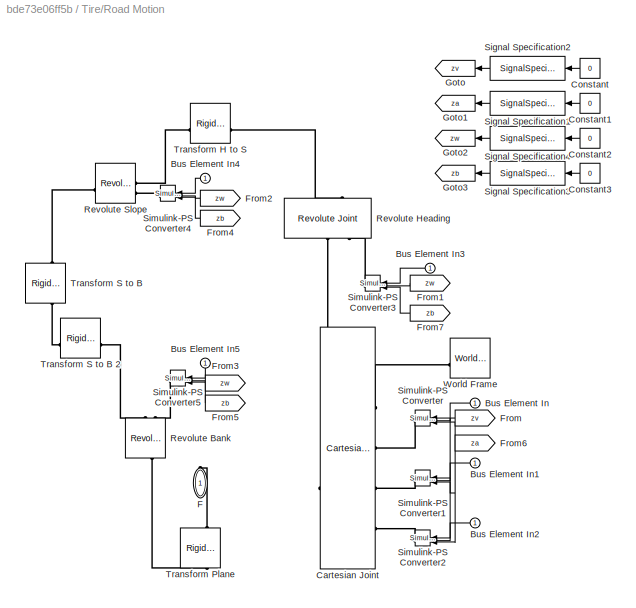
BLOCK [SubSystem] Tire/Road Motion
BLOCK [Inport] Tire/Road Motion/Bus Element In
BLOCK [Inport] Tire/Road Motion/Bus Element In1
BLOCK [Inport] Tire/Road Motion/Bus Element In2
BLOCK [Inport] Tire/Road Motion/Bus Element In3
BLOCK [Inport] Tire/Road Motion/Bus Element In4
BLOCK [Inport] Tire/Road Motion/Bus Element In5
BLOCK [Reference] Tire/Road Motion/Cartesian Joint  REF=sm_lib/Joints/Cartesian
Joint
  SourceBlock = sm_lib/Joints/Cartesian\nJoint
  SourceType = Cartesian\nJoint
BLOCK [Constant] Tire/Road Motion/Constant
  Value = 0
BLOCK [Constant] Tire/Road Motion/Constant1
  Value = 0
BLOCK [Constant] Tire/Road Motion/Constant2
  Value = 0
BLOCK [Constant] Tire/Road Motion/Constant3
  Value = 0
BLOCK [PMIOPort] Tire/Road Motion/F
  NameLocation = right
  Side = Right
BLOCK [From] Tire/Road Motion/From
  GotoTag = zv
BLOCK [From] Tire/Road Motion/From1
  GotoTag = zw
BLOCK [From] Tire/Road Motion/From2
  GotoTag = zw
BLOCK [From] Tire/Road Motion/From3
  GotoTag = zw
BLOCK [From] Tire/Road Motion/From4
  GotoTag = zb
BLOCK [From] Tire/Road Motion/From5
  GotoTag = zb
BLOCK [From] Tire/Road Motion/From6
  GotoTag = za
BLOCK [From] Tire/Road Motion/From7
  GotoTag = zb
BLOCK [Goto] Tire/Road Motion/Goto
  GotoTag = zv
  NameLocation = top
BLOCK [Goto] Tire/Road Motion/Goto1
  GotoTag = za
  NameLocation = top
BLOCK [Goto] Tire/Road Motion/Goto2
  GotoTag = zw
  NameLocation = top
BLOCK [Goto] Tire/Road Motion/Goto3
  GotoTag = zb
  NameLocation = top
BLOCK [Reference] Tire/Road Motion/Revolute Bank  REF=sm_lib/Joints/Revolute Joint
  NameLocation = left
  SourceBlock = sm_lib/Joints/Revolute Joint
  SourceType = Revolute Joint
BLOCK [Reference] Tire/Road Motion/Revolute Heading  REF=sm_lib/Joints/Revolute Joint
  NameLocation = right
  SourceBlock = sm_lib/Joints/Revolute Joint
  SourceType = Revolute Joint
BLOCK [Reference] Tire/Road Motion/Revolute Slope  REF=sm_lib/Joints/Revolute Joint
  SourceBlock = sm_lib/Joints/Revolute Joint
  SourceType = Revolute Joint
BLOCK [SignalSpecification] Tire/Road Motion/Signal Specification1
  Unit = m/s^2
BLOCK [SignalSpecification] Tire/Road Motion/Signal Specification2
  Unit = m/s
BLOCK [SignalSpecification] Tire/Road Motion/Signal Specification3
  Unit = rad/s^2
BLOCK [SignalSpecification] Tire/Road Motion/Signal Specification4
  Unit = rad/s
BLOCK [Reference] Tire/Road Motion/Simulink-PS Converter  REF=nesl_utility/Simulink-PS
Converter
  SourceBlock = nesl_utility/Simulink-PS\nConverter
  SourceType = Simulink-PS\nConverter
BLOCK [Reference] Tire/Road Motion/Simulink-PS Converter1  REF=nesl_utility/Simulink-PS
Converter
  SourceBlock = nesl_utility/Simulink-PS\nConverter
  SourceType = Simulink-PS\nConverter
BLOCK [Reference] Tire/Road Motion/Simulink-PS Converter2  REF=nesl_utility/Simulink-PS
Converter
  SourceBlock = nesl_utility/Simulink-PS\nConverter
  SourceType = Simulink-PS\nConverter
BLOCK [Reference] Tire/Road Motion/Simulink-PS Converter3  REF=nesl_utility/Simulink-PS
Converter
  NameLocation = top
  SourceBlock = nesl_utility/Simulink-PS\nConverter
  SourceType = Simulink-PS\nConverter
BLOCK [Reference] Tire/Road Motion/Simulink-PS Converter4  REF=nesl_utility/Simulink-PS
Converter
  SourceBlock = nesl_utility/Simulink-PS\nConverter
  SourceType = Simulink-PS\nConverter
BLOCK [Reference] Tire/Road Motion/Simulink-PS Converter5  REF=nesl_utility/Simulink-PS
Converter
  SourceBlock = nesl_utility/Simulink-PS\nConverter
  SourceType = Simulink-PS\nConverter
BLOCK [Reference] Tire/Road Motion/Transform H to S  REF=sm_lib/Frames and
Transforms/Rigid
Transform
  NameLocation = top
  SourceBlock = sm_lib/Frames and\nTransforms/Rigid\nTransform
  SourceType = Rigid\nTransform
BLOCK [Reference] Tire/Road Motion/Transform Plane  REF=sm_lib/Frames and
Transforms/Rigid
Transform
  NameLocation = right
  SourceBlock = sm_lib/Frames and\nTransforms/Rigid\nTransform
  SourceType = Rigid\nTransform
BLOCK [Reference] Tire/Road Motion/Transform S to B  REF=sm_lib/Frames and
Transforms/Rigid
Transform
  NameLocation = right
  SourceBlock = sm_lib/Frames and\nTransforms/Rigid\nTransform
  SourceType = Rigid\nTransform
BLOCK [Reference] Tire/Road Motion/Transform S to B 2  REF=sm_lib/Frames and
Transforms/Rigid
Transform
  SourceBlock = sm_lib/Frames and\nTransforms/Rigid\nTransform
  SourceType = Rigid\nTransform
BLOCK [Reference] Tire/Road Motion/World Frame  REF=sm_lib/Frames and
Transforms/World Frame
  NameLocation = top
  SourceBlock = sm_lib/Frames and\nTransforms/World Frame
  SourceType = World Frame
BLOCK [Reference] Tire/Tire  REF=sm_lib/Body Elements/File Solid
  SourceBlock = sm_lib/Body Elements/File Solid
  SourceType = File Solid
BLOCK [Reference] Tire/Transform Geometry  REF=sm_lib/Frames and
Transforms/Rigid
Transform
  SourceBlock = sm_lib/Frames and\nTransforms/Rigid\nTransform
  SourceType = Rigid\nTransform
BLOCK [Reference] Tire/Transform Rotation Axis  REF=sm_lib/Frames and
Transforms/Rigid
Transform
  SourceBlock = sm_lib/Frames and\nTransforms/Rigid\nTransform
  SourceType = Rigid\nTransform
BLOCK [Reference] Tire/Wheel  REF=sm_lib/Body Elements/File Solid
  SourceBlock = sm_lib/Body Elements/File Solid
  SourceType = File Solid
BLOCK [Outport] Tire/m
BLOCK [Inport] Tire/rd
BLOCK [SubSystem] Valve Control
BLOCK [SubSystem] Valve Control/Categorize Surface
BLOCK [Inport] Valve Control/Categorize Surface/Apply Valve
  Port = 2
BLOCK [Reference] Valve Control/Categorize Surface/Compare To Constant  REF=simulink/Logic and Bit
Operations/Compare
To Constant
  SourceBlock = simulink/Logic and Bit\nOperations/Compare\nTo Constant
  SourceType = Compare To Constant
BLOCK [Reference] Valve Control/Categorize Surface/Compare To Constant1  REF=simulink/Logic and Bit
Operations/Compare
To Constant
  SourceBlock = simulink/Logic and Bit\nOperations/Compare\nTo Constant
  SourceType = Compare To Constant
BLOCK [SubSystem] Valve Control/Categorize Surface/Count Apply Pulses
  TreatAsAtomicUnit = on
BLOCK [Outport] Valve Control/Categorize Surface/Count Apply Pulses/Apply Pulses
  VectorParamsAs1DForOutWhenUnconnected = off
BLOCK [Constant] Valve Control/Categorize Surface/Count Apply Pulses/Constant
  NameLocation = left
  Value = 0
BLOCK [Inport] Valve Control/Categorize Surface/Count Apply Pulses/In1
BLOCK [Memory] Valve Control/Categorize Surface/Count Apply Pulses/Memory
  InheritSampleTime = on
  NameLocation = top
BLOCK [Constant] Valve Control/Categorize Surface/Count Apply Pulses/Pulse Increment
BLOCK [Sum] Valve Control/Categorize Surface/Count Apply Pulses/Sum
  Inputs = |++
BLOCK [Switch] Valve Control/Categorize Surface/Count Apply Pulses/Switch
  Criteria = u2 > Threshold
  InputSameDT = off
  SaturateOnIntegerOverflow = off
  Threshold = 0.5
  ZeroCross = off
BLOCK [TriggerPort] Valve Control/Categorize Surface/Count Apply Pulses/Trigger
  StatesWhenEnabling = held
  VariantControl = Variant
BLOCK [Inport] Valve Control/Categorize Surface/Mod State
BLOCK [Terminator] Valve Control/Categorize Surface/Terminator
BLOCK [SubSystem] Valve Control/Categorize Surface/Total Apply Pulses This Cycle
  TreatAsAtomicUnit = on
BLOCK [Inport] Valve Control/Categorize Surface/Total Apply Pulses This Cycle/In1
BLOCK [Outport] Valve Control/Categorize Surface/Total Apply Pulses This Cycle/Total Pulses
  VectorParamsAs1DForOutWhenUnconnected = off
BLOCK [TriggerPort] Valve Control/Categorize Surface/Total Apply Pulses This Cycle/Trigger
  StatesWhenEnabling = held
  VariantControl = Variant
BLOCK [SubSystem] Valve Control/Code to Valves
  NameLocation = top
BLOCK [Inport] Valve Control/Code to Valves/C
  NameLocation = top
BLOCK [Constant] Valve Control/Code to Valves/Constant
  Value = [0 0]
BLOCK [Constant] Valve Control/Code to Valves/Constant1
  Value = [0 1]
BLOCK [Constant] Valve Control/Code to Valves/Constant2
  Value = [1 0]
BLOCK [MultiPortSwitch] Valve Control/Code to Valves/Multiport Switch
  DataPortOrder = Zero-based contiguous
  InputSameDT = off
  SaturateOnIntegerOverflow = off
  zeroidx = on
BLOCK [Outport] Valve Control/Code to Valves/V
  VectorParamsAs1DForOutWhenUnconnected = off
BLOCK [Demux] Valve Control/Demux
  Outputs = 2
BLOCK [SubSystem] Valve Control/Logic
  ErrorFcn = Stateflow.Translate.translate
  PermitHierarchicalResolution = ExplicitOnly
  SFBlockType = Chart
  TreatAsAtomicUnit = on
BLOCK [Demux] Valve Control/Logic/ Demux 
  Outputs = 1
BLOCK [S-Function] Valve Control/Logic/ SFunction 
  EnableBusSupport = off
  FunctionName = sf_sfun
  PortCounts = [2 3]
  SFcnIsStateOwnerBlock = off
  SFunctionDeploymentMode = off
  Tag = Stateflow S-Function 3
BLOCK [Terminator] Valve Control/Logic/ Terminator 
BLOCK [Outport] Valve Control/Logic/Mod_Dur
  Port = 2
  VectorParamsAs1DForOutWhenUnconnected = off
BLOCK [Outport] Valve Control/Logic/Mod_State
  VectorParamsAs1DForOutWhenUnconnected = off
BLOCK [Inport] Valve Control/Logic/Slip
BLOCK [Inport] Valve Control/Logic/vSpdEst
  Port = 2
BLOCK [Mux] Valve Control/Mux
  DisplayOption = bar
  Inputs = 2
BLOCK [Product] Valve Control/Product
BLOCK [Inport] Valve Control/Slip
BLOCK [SubSystem] Valve Control/Subsystem
BLOCK [Constant] Valve Control/Subsystem/Constant
  Value = 0
BLOCK [Constant] Valve Control/Subsystem/Constant1
BLOCK [Demux] Valve Control/Subsystem/Demux
  Outputs = 9
BLOCK [MultiPortSwitch] Valve Control/Subsystem/Multiport Switch
  DataPortOrder = Zero-based contiguous
  InputSameDT = off
  Inputs = 11
  SaturateOnIntegerOverflow = off
  zeroidx = on
BLOCK [Inport] Valve Control/Subsystem/OnT
BLOCK [DiscretePulseGenerator] Valve Control/Subsystem/Pulse Generator
  Period = 0.01
  PulseType = Time based
  PulseWidth = [1 2 3 4 5 6 7 8 9]*10
BLOCK [Outport] Valve Control/Subsystem/vSig
  VectorParamsAs1DForOutWhenUnconnected = off
BLOCK [SubSystem] Valve Control/Subsystem1
BLOCK [Constant] Valve Control/Subsystem1/Constant
  Value = 0
BLOCK [Constant] Valve Control/Subsystem1/Constant1
BLOCK [Demux] Valve Control/Subsystem1/Demux
  Outputs = 9
BLOCK [MultiPortSwitch] Valve Control/Subsystem1/Multiport Switch
  DataPortOrder = Zero-based contiguous
  InputSameDT = off
  Inputs = 11
  SaturateOnIntegerOverflow = off
  zeroidx = on
BLOCK [Inport] Valve Control/Subsystem1/OnT
BLOCK [DiscretePulseGenerator] Valve Control/Subsystem1/Pulse Generator
  Period = 0.01
  PulseType = Time based
  PulseWidth = [1 2 3 4 5 6 7 8 9]*10
BLOCK [Outport] Valve Control/Subsystem1/vSig
  VectorParamsAs1DForOutWhenUnconnected = off
BLOCK [Outport] Valve Control/Valve
  VectorParamsAs1DForOutWhenUnconnected = off
BLOCK [Inport] Valve Control/vSpdEst
  Port = 2
ANNOTATION (root): <copyright redacted>
ANNOTATION Camera Frames: Orientation Fixed to Vehicle Body
ANNOTATION Camera Frames: Orientation Fixed to World
ANNOTATION Flat/Road: This implementation is for a flat road
ANNOTATION Pad Rotor: Newtons
ANNOTATION Pad Rotor: Pascal
ANNOTATION Pad Rotor: Separate hard stop blocks are used so that we can measure only the pressure the piston applies to the rotor and so that we can have different stiffness values for piston-rotor and piston-caliper housing.
ANNOTATION Plateau/Road: This implementation only varies road height and pitch along World x-axis.
ANNOTATION Road: This implementation is for a flat road
ANNOTATION Rough Road/Road: This implementation only varies road height and pitch along World x-axis.
ANNOTATION Valve Control/Code to Valves: Apply
ANNOTATION Valve Control/Code to Valves: Hold
ANNOTATION Valve Control/Code to Valves: Release
LINE Body Sensor/PS-Simulink Converter11:1 -> Body Sensor/Roll Pitch:1
LINE Body Sensor/PS-Simulink Converter1:1 -> Body Sensor/Bus Element Out:1
LINE Body Sensor/PS-Simulink Converter2:1 -> Body Sensor/Bus Element Out1:1
LINE Body Sensor/PS-Simulink Converter3:1 -> Body Sensor/Bus Element Out2:1
LINE Body Sensor/PS-Simulink Converter4:1 -> Body Sensor/Bus Element Out3:1
LINE Body Sensor/PS-Simulink Converter5:1 -> Body Sensor/Bus Element Out4:1
LINE Body Sensor/PS-Simulink Converter6:1 -> Body Sensor/Bus Element Out5:1
LINE Body Sensor/PS-Simulink Converter7:1 -> Body Sensor/Bus Element Out6:1
LINE Body Sensor/PS-Simulink Converter8:1 -> Body Sensor/Bus Element Out7:1
LINE Body Sensor/PS-Simulink Converter9:1 -> Body Sensor/Bus Element Out8:1
LINE Body Sensor/Roll Pitch/Calculate aPitch/Asin:1 -> Body Sensor/Roll Pitch/Calculate aPitch/Angle:1
LINE Body Sensor/Roll Pitch/Calculate aPitch/Cos:1 -> Body Sensor/Roll Pitch/Calculate aPitch/Divide:2
LINE Body Sensor/Roll Pitch/Calculate aPitch/Divide1:1 -> Body Sensor/Roll Pitch/Calculate aPitch/Asin:1
LINE Body Sensor/Roll Pitch/Calculate aPitch/Divide:1 -> Body Sensor/Roll Pitch/Calculate aPitch/Divide1:1
LINE Body Sensor/Roll Pitch/Calculate aPitch/Roll Angle:1 -> Body Sensor/Roll Pitch/Calculate aPitch/Cos:1
LINE Body Sensor/Roll Pitch/Calculate aPitch/Selector:1 -> Body Sensor/Roll Pitch/Calculate aPitch/Divide:1
LINE Body Sensor/Roll Pitch/Calculate aPitch/magnitude:1 -> Body Sensor/Roll Pitch/Calculate aPitch/Divide1:2
NET Body Sensor/Roll Pitch/Calculate aPitch/uvec:1 -> Body Sensor/Roll Pitch/Calculate aPitch/Selector:1, Body Sensor/Roll Pitch/Calculate aPitch/magnitude:1
LINE Body Sensor/Roll Pitch/Calculate aPitch:1 -> Body Sensor/Roll Pitch/Flip sign for -x axis :1
LINE Body Sensor/Roll Pitch/Calculate aRoll/Demux:1 -> Body Sensor/Roll Pitch/Calculate aRoll/Mux:1
LINE Body Sensor/Roll Pitch/Calculate aRoll/Demux:2 -> Body Sensor/Roll Pitch/Calculate aRoll/Mux:2
LINE Body Sensor/Roll Pitch/Calculate aRoll/Demux:3 -> Body Sensor/Roll Pitch/Calculate aRoll/Trigonometric Function1:1
LINE Body Sensor/Roll Pitch/Calculate aRoll/Mux:1 -> Body Sensor/Roll Pitch/Calculate aRoll/magnitude:1
LINE Body Sensor/Roll Pitch/Calculate aRoll/Trigonometric Function1:1 -> Body Sensor/Roll Pitch/Calculate aRoll/Angle:1
LINE Body Sensor/Roll Pitch/Calculate aRoll/magnitude:1 -> Body Sensor/Roll Pitch/Calculate aRoll/Trigonometric Function1:2
LINE Body Sensor/Roll Pitch/Calculate aRoll/uvec:1 -> Body Sensor/Roll Pitch/Calculate aRoll/Demux:1
NET Body Sensor/Roll Pitch/Calculate aRoll:1 -> Body Sensor/Roll Pitch/Calculate aPitch:1, Body Sensor/Roll Pitch/Transfer Fcn:1, Body Sensor/Roll Pitch/aRoll:1
NET Body Sensor/Roll Pitch/Flip sign for -x axis :1 -> Body Sensor/Roll Pitch/Transfer Fcn1:1, Body Sensor/Roll Pitch/aPitch:1
NET Body Sensor/Roll Pitch/R:1 -> Body Sensor/Roll Pitch/Select x axis:1, Body Sensor/Roll Pitch/Select y axis:1
LINE Body Sensor/Roll Pitch/Select x axis:1 -> Body Sensor/Roll Pitch/Calculate aPitch:2
LINE Body Sensor/Roll Pitch/Select y axis:1 -> Body Sensor/Roll Pitch/Calculate aRoll:1
LINE Body Sensor/Roll Pitch/Transfer Fcn1:1 -> Body Sensor/Roll Pitch/nPitch:1
LINE Body Sensor/Roll Pitch/Transfer Fcn:1 -> Body Sensor/Roll Pitch/nRoll:1
LINE Body Sensor/Roll Pitch:1 -> Body Sensor/Signal Specification:1
LINE Body Sensor/Roll Pitch:2 -> Body Sensor/Signal Specification1:1
LINE Body Sensor/Roll Pitch:3 -> Body Sensor/Signal Specification3:1
LINE Body Sensor/Roll Pitch:4 -> Body Sensor/Signal Specification4:1
LINE Body Sensor/Signal Specification1:1 -> Body Sensor/Bus Element Out13:1
LINE Body Sensor/Signal Specification3:1 -> Body Sensor/Bus Element Out9:1
LINE Body Sensor/Signal Specification4:1 -> Body Sensor/Bus Element Out10:1
LINE Body Sensor/Signal Specification:1 -> Body Sensor/Bus Element Out12:1
LINE Flat/Road/Bus Creator1:1 -> Flat/Road/R:1
LINE Flat/Road/Constant1:1 -> Flat/Road/Bus Creator1:1
LINE Flat/Road/Constant2:1 -> Flat/Road/Bus Creator1:6
LINE Flat/Road/Constant3:1 -> Flat/Road/Bus Creator1:3
LINE Flat/Road/Constant4:1 -> Flat/Road/Bus Creator1:5
LINE Flat/Road/Constant5:1 -> Flat/Road/Bus Creator1:2
LINE Flat/Road/Constant6:1 -> Flat/Road/Bus Creator1:8
LINE Flat/Road/Constant7:1 -> Flat/Road/Bus Creator1:7
LINE Flat/Road/Constant:1 -> Flat/Road/Bus Creator1:4
LINE Flat/Road:1 -> Flat/rd:1
LINE Mu Scaling by Position/Bus Creator:1 -> Mu Scaling by Position/rd:1
LINE Mu Scaling by Position/Compare To Constant1:1 -> Mu Scaling by Position/Gain:1
LINE Mu Scaling by Position/Compare To Constant:1 -> Mu Scaling by Position/Sum2:2
LINE Mu Scaling by Position/Gain1:1 -> Mu Scaling by Position/Bus Creator:1
LINE Mu Scaling by Position/Gain2:1 -> Mu Scaling by Position/Bus Creator:2
LINE Mu Scaling by Position/Gain:1 -> Mu Scaling by Position/Sum2:1
LINE Mu Scaling by Position/Interval Test Patch 1 y:1 -> Mu Scaling by Position/Sum:2
LINE Mu Scaling by Position/Interval Test Patch 2 x:1 -> Mu Scaling by Position/Sum1:1
LINE Mu Scaling by Position/Interval Test Patch 2 y:1 -> Mu Scaling by Position/Sum1:2
LINE Mu Scaling by Position/Interval Test Patch1 x:1 -> Mu Scaling by Position/Sum:1
LINE Mu Scaling by Position/PS-Simulink Converter2:1 -> Mu Scaling by Position/Transfer Fcn:1
LINE Mu Scaling by Position/PS-Simulink Converter3:1 -> Mu Scaling by Position/Transfer Fcn1:1
NET Mu Scaling by Position/Select mu:1 -> Mu Scaling by Position/Gain1:1, Mu Scaling by Position/Gain2:1
LINE Mu Scaling by Position/Sum1:1 -> Mu Scaling by Position/Compare To Constant1:1
LINE Mu Scaling by Position/Sum2:1 -> Mu Scaling by Position/Select mu:1
LINE Mu Scaling by Position/Sum:1 -> Mu Scaling by Position/Compare To Constant:1
NET Mu Scaling by Position/Transfer Fcn1:1 -> Mu Scaling by Position/Interval Test Patch 1 y:1, Mu Scaling by Position/Interval Test Patch 2 y:1
NET Mu Scaling by Position/Transfer Fcn:1 -> Mu Scaling by Position/Interval Test Patch 2 x:1, Mu Scaling by Position/Interval Test Patch1 x:1
LINE Mu Scaling by Position/mu Patch 1:1 -> Mu Scaling by Position/Select mu:3
LINE Mu Scaling by Position/mu Patch 2:1 -> Mu Scaling by Position/Select mu:4
LINE Mu Scaling by Position/mu surface:1 -> Mu Scaling by Position/Select mu:2
LINE Plateau/PS-Simulink Converter2:1 -> Plateau/Transfer Fcn:1
LINE Plateau/PS-Simulink Converter3:1 -> Plateau/Transfer Fcn1:1
LINE Plateau/Road/1-D Lookup Table pitch:1 -> Plateau/Road/Bus Creator1:5
LINE Plateau/Road/1-D Lookup Table pz:1 -> Plateau/Road/Bus Creator1:3
LINE Plateau/Road/Bus Creator1:1 -> Plateau/Road/R:1
LINE Plateau/Road/Constant2:1 -> Plateau/Road/Bus Creator1:6
LINE Plateau/Road/Constant:1 -> Plateau/Road/Bus Creator1:4
NET Plateau/Road/x:1 -> Plateau/Road/1-D Lookup Table pitch:1, Plateau/Road/1-D Lookup Table pz:1, Plateau/Road/Bus Creator1:1
LINE Plateau/Road/y:1 -> Plateau/Road/Bus Creator1:2
LINE Plateau/Road:1 -> Plateau/rd:1
LINE Plateau/Transfer Fcn1:1 -> Plateau/Road:2
LINE Plateau/Transfer Fcn:1 -> Plateau/Road:1
LINE Road/Bus Creator1:1 -> Road/R:1
LINE Road/Constant1:1 -> Road/Bus Creator1:1
LINE Road/Constant2:1 -> Road/Bus Creator1:6
LINE Road/Constant3:1 -> Road/Bus Creator1:3
LINE Road/Constant4:1 -> Road/Bus Creator1:5
LINE Road/Constant5:1 -> Road/Bus Creator1:2
LINE Road/Constant6:1 -> Road/Bus Creator1:7
LINE Road/Constant7:1 -> Road/Bus Creator1:8
LINE Road/Constant:1 -> Road/Bus Creator1:4
LINE Road:1 -> Tire mu:1
LINE Rough Road/PS-Simulink Converter2:1 -> Rough Road/Transfer Fcn:1
LINE Rough Road/PS-Simulink Converter3:1 -> Rough Road/Transfer Fcn1:1
LINE Rough Road/Road/1-D Lookup Table pitch:1 -> Rough Road/Road/Bus Creator1:5
LINE Rough Road/Road/1-D Lookup Table pz:1 -> Rough Road/Road/Bus Creator1:3
LINE Rough Road/Road/Bus Creator1:1 -> Rough Road/Road/R:1
LINE Rough Road/Road/Constant2:1 -> Rough Road/Road/Bus Creator1:6
LINE Rough Road/Road/Constant:1 -> Rough Road/Road/Bus Creator1:4
NET Rough Road/Road/x:1 -> Rough Road/Road/1-D Lookup Table pitch:1, Rough Road/Road/1-D Lookup Table pz:1, Rough Road/Road/Bus Creator1:1
LINE Rough Road/Road/y:1 -> Rough Road/Road/Bus Creator1:2
LINE Rough Road/Road:1 -> Rough Road/rd:1
LINE Rough Road/Transfer Fcn1:1 -> Rough Road/Road:2
LINE Rough Road/Transfer Fcn:1 -> Rough Road/Road:1
LINE Valve Control/Categorize Surface/Apply Valve:1 -> Valve Control/Categorize Surface/Count Apply Pulses:trigger
LINE Valve Control/Categorize Surface/Compare To Constant1:1 -> Valve Control/Categorize Surface/Count Apply Pulses:1
LINE Valve Control/Categorize Surface/Compare To Constant:1 -> Valve Control/Categorize Surface/Terminator:1
LINE Valve Control/Categorize Surface/Count Apply Pulses/Constant:1 -> Valve Control/Categorize Surface/Count Apply Pulses/Switch:1
LINE Valve Control/Categorize Surface/Count Apply Pulses/In1:1 -> Valve Control/Categorize Surface/Count Apply Pulses/Switch:2
LINE Valve Control/Categorize Surface/Count Apply Pulses/Memory:1 -> Valve Control/Categorize Surface/Count Apply Pulses/Sum:1
LINE Valve Control/Categorize Surface/Count Apply Pulses/Pulse Increment:1 -> Valve Control/Categorize Surface/Count Apply Pulses/Sum:2
NET Valve Control/Categorize Surface/Count Apply Pulses/Sum:1 -> Valve Control/Categorize Surface/Count Apply Pulses/Apply Pulses:1, Valve Control/Categorize Surface/Count Apply Pulses/Switch:3
LINE Valve Control/Categorize Surface/Count Apply Pulses/Switch:1 -> Valve Control/Categorize Surface/Count Apply Pulses/Memory:1
LINE Valve Control/Categorize Surface/Count Apply Pulses:1 -> Valve Control/Categorize Surface/Total Apply Pulses This Cycle:1
NET Valve Control/Categorize Surface/Mod State:1 -> Valve Control/Categorize Surface/Compare To Constant1:1, Valve Control/Categorize Surface/Total Apply Pulses This Cycle:trigger
LINE Valve Control/Categorize Surface/Total Apply Pulses This Cycle/In1:1 -> Valve Control/Categorize Surface/Total Apply Pulses This Cycle/Total Pulses:1
LINE Valve Control/Categorize Surface/Total Apply Pulses This Cycle:1 -> Valve Control/Categorize Surface/Compare To Constant:1
LINE Valve Control/Code to Valves/C:1 -> Valve Control/Code to Valves/Multiport Switch:1
LINE Valve Control/Code to Valves/Constant1:1 -> Valve Control/Code to Valves/Multiport Switch:3
LINE Valve Control/Code to Valves/Constant2:1 -> Valve Control/Code to Valves/Multiport Switch:4
LINE Valve Control/Code to Valves/Constant:1 -> Valve Control/Code to Valves/Multiport Switch:2
LINE Valve Control/Code to Valves/Multiport Switch:1 -> Valve Control/Code to Valves/V:1
LINE Valve Control/Code to Valves:1 -> Valve Control/Product:1
LINE Valve Control/Demux:1 -> Valve Control/Subsystem:1
LINE Valve Control/Demux:2 -> Valve Control/Subsystem1:1
NET Valve Control/Logic:1 -> Valve Control/Categorize Surface:1, Valve Control/Code to Valves:1
LINE Valve Control/Logic:2 -> Valve Control/Product:2
LINE Valve Control/Mux:1 -> Valve Control/Valve:1
LINE Valve Control/Product:1 -> Valve Control/Demux:1
LINE Valve Control/Slip:1 -> Valve Control/Logic:1
LINE Valve Control/Subsystem/Constant1:1 -> Valve Control/Subsystem/Multiport Switch:12
LINE Valve Control/Subsystem/Constant:1 -> Valve Control/Subsystem/Multiport Switch:2
LINE Valve Control/Subsystem/Demux:1 -> Valve Control/Subsystem/Multiport Switch:3
LINE Valve Control/Subsystem/Demux:2 -> Valve Control/Subsystem/Multiport Switch:4
LINE Valve Control/Subsystem/Demux:3 -> Valve Control/Subsystem/Multiport Switch:5
LINE Valve Control/Subsystem/Demux:4 -> Valve Control/Subsystem/Multiport Switch:6
LINE Valve Control/Subsystem/Demux:5 -> Valve Control/Subsystem/Multiport Switch:7
LINE Valve Control/Subsystem/Demux:6 -> Valve Control/Subsystem/Multiport Switch:8
LINE Valve Control/Subsystem/Demux:7 -> Valve Control/Subsystem/Multiport Switch:9
LINE Valve Control/Subsystem/Demux:8 -> Valve Control/Subsystem/Multiport Switch:10
LINE Valve Control/Subsystem/Demux:9 -> Valve Control/Subsystem/Multiport Switch:11
LINE Valve Control/Subsystem/Multiport Switch:1 -> Valve Control/Subsystem/vSig:1
LINE Valve Control/Subsystem/OnT:1 -> Valve Control/Subsystem/Multiport Switch:1
LINE Valve Control/Subsystem/Pulse Generator:1 -> Valve Control/Subsystem/Demux:1
LINE Valve Control/Subsystem1/Constant1:1 -> Valve Control/Subsystem1/Multiport Switch:12
LINE Valve Control/Subsystem1/Constant:1 -> Valve Control/Subsystem1/Multiport Switch:2
LINE Valve Control/Subsystem1/Demux:1 -> Valve Control/Subsystem1/Multiport Switch:3
LINE Valve Control/Subsystem1/Demux:2 -> Valve Control/Subsystem1/Multiport Switch:4
LINE Valve Control/Subsystem1/Demux:3 -> Valve Control/Subsystem1/Multiport Switch:5
LINE Valve Control/Subsystem1/Demux:4 -> Valve Control/Subsystem1/Multiport Switch:6
LINE Valve Control/Subsystem1/Demux:5 -> Valve Control/Subsystem1/Multiport Switch:7
LINE Valve Control/Subsystem1/Demux:6 -> Valve Control/Subsystem1/Multiport Switch:8
LINE Valve Control/Subsystem1/Demux:7 -> Valve Control/Subsystem1/Multiport Switch:9
LINE Valve Control/Subsystem1/Demux:8 -> Valve Control/Subsystem1/Multiport Switch:10
LINE Valve Control/Subsystem1/Demux:9 -> Valve Control/Subsystem1/Multiport Switch:11
LINE Valve Control/Subsystem1/Multiport Switch:1 -> Valve Control/Subsystem1/vSig:1
LINE Valve Control/Subsystem1/OnT:1 -> Valve Control/Subsystem1/Multiport Switch:1
LINE Valve Control/Subsystem1/Pulse Generator:1 -> Valve Control/Subsystem1/Demux:1
LINE Valve Control/Subsystem1:1 -> Valve Control/Mux:2
NET Valve Control/Subsystem:1 -> Valve Control/Categorize Surface:2, Valve Control/Mux:1
LINE Valve Control/vSpdEst:1 -> Valve Control/Logic:2
PLINE Body Sensor/B:RConn1 -- Body Sensor/Transform Sensor Offset:LConn1
PLINE Body Sensor/PS-Simulink Converter11:LConn1 -- Body Sensor/Transform Sensor Body:RConn2
PLINE Body Sensor/PS-Simulink Converter1:LConn1 -- Body Sensor/Transform Sensor Body:RConn3
PLINE Body Sensor/PS-Simulink Converter2:LConn1 -- Body Sensor/Transform Sensor Body:RConn4
PLINE Body Sensor/PS-Simulink Converter3:LConn1 -- Body Sensor/Transform Sensor Body:RConn5
PLINE Body Sensor/PS-Simulink Converter4:LConn1 -- Body Sensor/Transform Sensor Body:RConn6
PLINE Body Sensor/PS-Simulink Converter5:LConn1 -- Body Sensor/Transform Sensor Body:RConn7
PLINE Body Sensor/PS-Simulink Converter6:LConn1 -- Body Sensor/Transform Sensor Body:RConn8
PLINE Body Sensor/PS-Simulink Converter7:LConn1 -- Body Sensor/Transform Sensor Body:RConn9
PLINE Body Sensor/PS-Simulink Converter8:LConn1 -- Body Sensor/Transform Sensor Body:RConn10
PLINE Body Sensor/PS-Simulink Converter9:LConn1 -- Body Sensor/Transform Sensor Body:RConn11
PLINE Body Sensor/Transform Sensor Body:LConn1 -- Body Sensor/World Frame:RConn1
PLINE Body Sensor/Transform Sensor Body:RConn1 -- Body Sensor/Transform Sensor Offset:RConn1
PLINE Flat/C:RConn1 -- Flat/Reference Frame:RConn1
PLINE Mesh/B:RConn1 -- Mesh/Solid:LConn2
PLINE Mesh/F:RConn1 -- Mesh/Solid:LConn1
PLINE Mesh/R:RConn1 -- Mesh/Solid:RConn1
PLINE Mu Scaling by Position/C:RConn1 -- Mu Scaling by Position/Transform Sensor:RConn1
PLINE Mu Scaling by Position/PS-Simulink Converter2:LConn1 -- Mu Scaling by Position/Transform Sensor:RConn2
PLINE Mu Scaling by Position/PS-Simulink Converter3:LConn1 -- Mu Scaling by Position/Transform Sensor:RConn3
PLINE Mu Scaling by Position/Transform Sensor:LConn1 -- Mu Scaling by Position/World Frame:RConn1
PLINE Pad Rotor/Force Sensor:LConn1 -- Pad Rotor/Hard Stop Rotor:RConn1
PLINE Pad Rotor/Force Sensor:RConn1 -- Pad Rotor/MTRef:LConn1
PLINE Pad Rotor/Force Sensor:RConn2 -- Pad Rotor/PS Calc Pressure Rotor:LConn1
PNET net1: Pad Rotor/Hard Stop Caliper:LConn1 -- Pad Rotor/Hard Stop Rotor:LConn1 -- Pad Rotor/Mass:LConn1 -- Pad Rotor/Piston:RConn1
PLINE Pad Rotor/Hard Stop Caliper:RConn1 -- Pad Rotor/MTRef1:LConn1
PLINE Pad Rotor/PS Calc Pressure Rotor:LConn2 -- Pad Rotor/PS Cyl A:RConn1
PLINE Pad Rotor/PS Calc Pressure Rotor:RConn1 -- Pad Rotor/pPad:RConn1
PNET net2: Pad Rotor/PS Cyl A/PS Constant:RConn1 -- Pad Rotor/PS Cyl A/PS Product1:LConn1 -- Pad Rotor/PS Cyl A/PS Product1:LConn2
PLINE Pad Rotor/PS Cyl A/PS Gain pi div 4:LConn1 -- Pad Rotor/PS Cyl A/PS Product1:RConn1
PLINE Pad Rotor/PS Cyl A/PS Gain pi div 4:RConn1 -- Pad Rotor/PS Cyl A/cylA:RConn1
PLINE Plateau/C:RConn1 -- Plateau/Transform Sensor:RConn1
PLINE Plateau/PS-Simulink Converter2:LConn1 -- Plateau/Transform Sensor:RConn2
PLINE Plateau/PS-Simulink Converter3:LConn1 -- Plateau/Transform Sensor:RConn3
PLINE Plateau/Transform Sensor:LConn1 -- Plateau/World Frame:RConn1
PLINE Position Camera Frame/B:RConn1 -- Position Camera Frame/Transform Camera Frame:LConn1
PLINE Position Camera Frame/F:RConn1 -- Position Camera Frame/Transform Camera Frame:RConn1
PLINE Rough Road/C:RConn1 -- Rough Road/Transform Sensor:RConn1
PLINE Rough Road/PS-Simulink Converter2:LConn1 -- Rough Road/Transform Sensor:RConn2
PLINE Rough Road/PS-Simulink Converter3:LConn1 -- Rough Road/Transform Sensor:RConn3
PLINE Rough Road/Transform Sensor:LConn1 -- Rough Road/World Frame:RConn1
PLINE Scene Plateau/RDF Polyline/Profile Left:RConn1 -- Scene Plateau/RDF Polyline/Transform Z to Y Left:RConn1
PLINE Scene Plateau/RDF Polyline/Profile Right:RConn1 -- Scene Plateau/RDF Polyline/Transform Z to Y Right:RConn1
PNET net3: Scene Plateau/RDF Polyline/Transform Left Profile:LConn1 -- Scene Plateau/RDF Polyline/Transform Right Profile:LConn1 -- Scene Plateau/RDF Polyline/Transform Road:RConn1
PLINE Scene Plateau/RDF Polyline/Transform Left Profile:RConn1 -- Scene Plateau/RDF Polyline/Transform Z to Y Left:LConn1
PLINE Scene Plateau/RDF Polyline/Transform Right Profile:RConn1 -- Scene Plateau/RDF Polyline/Transform Z to Y Right:LConn1
PLINE Scene Plateau/RDF Polyline/Transform Road:LConn1 -- Scene Plateau/RDF Polyline/W:RConn1
PLINE Scene Plateau/RDF Polyline:RConn1 -- Scene Plateau/W:RConn1
note: NET lines group one-source signal fan-out (src -> all destinations, sorted); 1:1 wires keep LINE; PNET lines group multi-terminal physical nets as a canonical sorted terminal list (undirected conserving connections); 2-terminal nets keep the pairwise PLINE form
CHART Camera Frames/Dolly
Camera/XYZ/Interpolate states=1 transitions=1
  STATE_LABEL 'eML_blk_kernel()'
  STATE_LABEL "SCRIPT:\nfunction [x,y,z] = fcn(t,tvec,xvec,yvec,zvec)\n\nx = interp1(tvec,xvec,t,'pchip');\ny = interp1(tvec,yvec,t,'pchip');\nz = interp1(tvec,zvec,t,'pchip');\n\n\n"
CHART Valve Control/Logic states=6 transitions=11
  STATE_LABEL 'Inactive\nentry:\nMod_State = 1;\nMod_Dur = 10;'
  STATE_LABEL 'Initial_Release\nentry:\nMod_State = 2;\nMod_Dur = 10;'
  STATE_LABEL 'Initial_Apply\nentry:\nMod_State = 1;\nMod_Dur = 6;'
  STATE_LABEL 'Release\nentry:\nMod_State = 2;\nMod_Dur = 6;'
  STATE_LABEL 'Apply\nentry:\nMod_State = 1;\nMod_Dur = 2;'
  STATE_LABEL 'Hold\nentry:\nMod_State = 0;\nMod_Dur = 6;'
CHART  states=0 transitions=0
CHART  states=0 transitions=0
